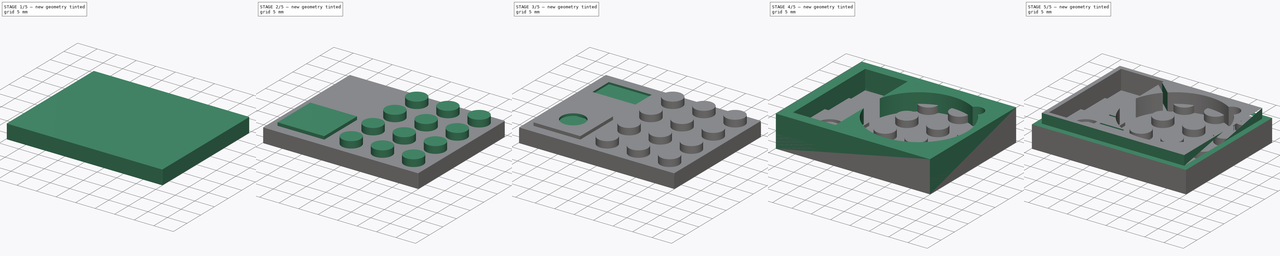
[diagram: build sequence overview — one tinted view per stage of 5, left to right]
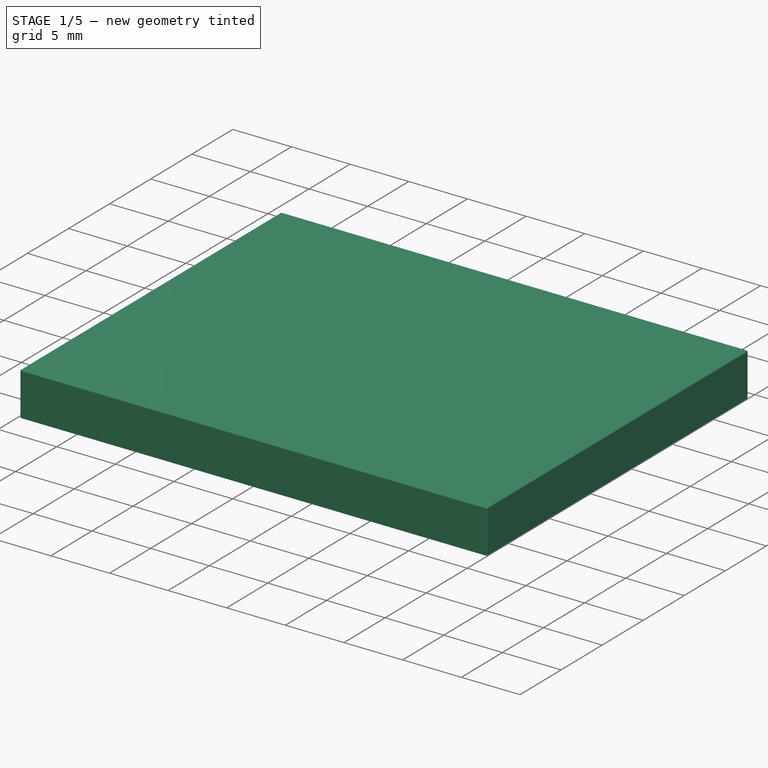
[diagram: stage 1 of 5 — iso view after this stage's code; geometry added in this stage tinted green]
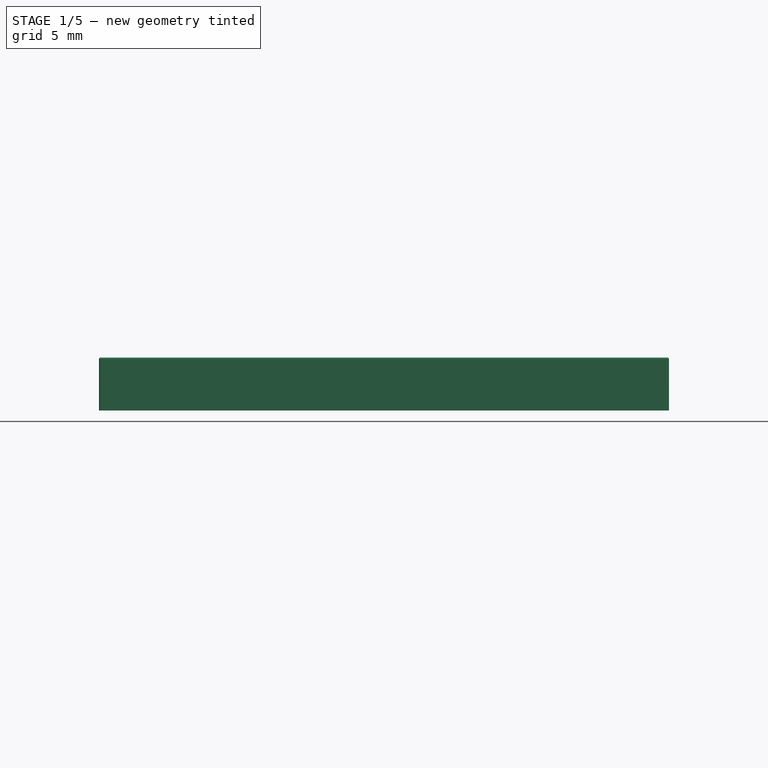
[diagram: stage 1 of 5 — front view after this stage's code; geometry added in this stage tinted green]
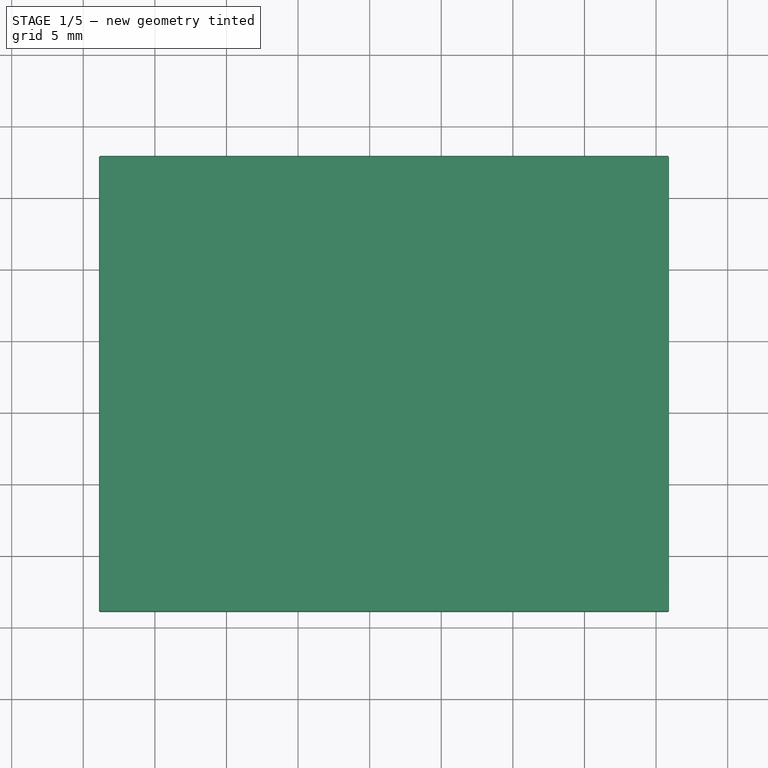
[diagram: stage 1 of 5 — top view after this stage's code; geometry added in this stage tinted green]
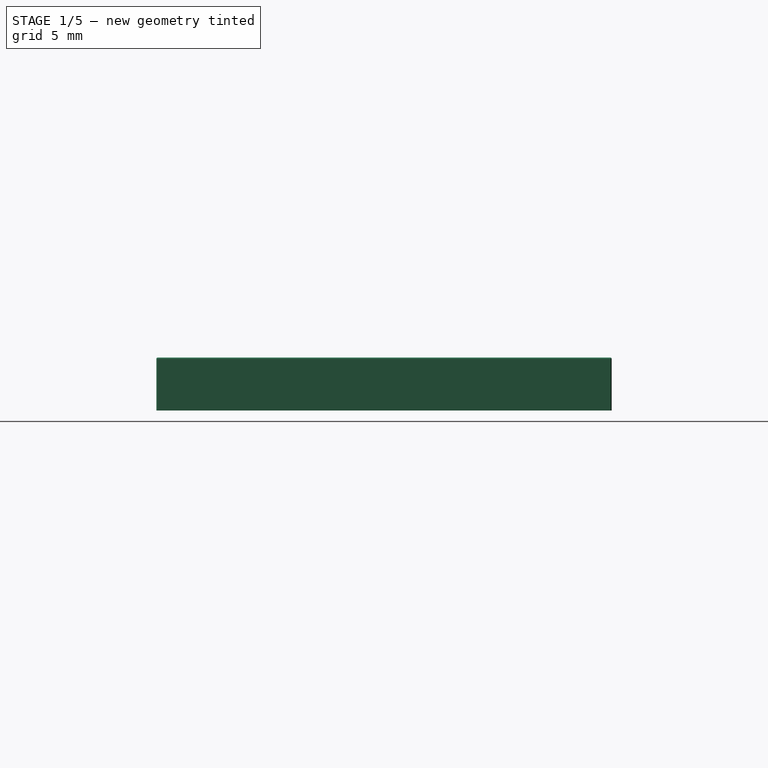
[diagram: stage 1 of 5 — right view after this stage's code; geometry added in this stage tinted green]
FCSTD DOCUMENT  (FreeCAD 1.0R39285 (Git))
Label: LegoBat_CR2450
License: Creative Commons Attribution-NonCommercial 4.0
LicenseURL: https://creativecommons.org/licenses/by-nc/4.0/
objects: PartDesign::Plane×23, Sketcher::SketchObject×14, PartDesign::Pocket×8, PartDesign::Pad×6, PartDesign::Body×2, PartDesign::Fillet×2
note: 101 computed .brp shape members not serialized (recipe doc carries the construction recipe); baked Part::Feature solids carry a one-line shape summary decoded from their .brp

FEATURE [PartDesign::Plane] top_datum_plane001
  AttachmentOffset = pos=(0,0,3.7) rot=(0,0,1;0rad)
  AttachmentSupport = -> [XY_Plane]
  Length = 72.2518
  MapMode = 5
  Placement = pos=(0,0,3.7) rot=(0,0,1;0rad)
  ResizeMode = 0
  Width = 64.2518
FEATURE [PartDesign::Plane] front_datum_plane001
  AttachmentOffset = pos=(0,0,3.9) rot=(0,0,1;0rad)
  AttachmentSupport = -> [XZ_Plane]
  Length = 71.9363
  MapMode = 5
  Placement = pos=(0,-3.9,9e-16) rot=(1,0,0;1.5708rad)
  ResizeMode = 0
  Width = 61.0363
FEATURE [PartDesign::Plane] back_datum_plane001
  AttachmentOffset = pos=(0,0,-27.9) rot=(0,0,1;0rad)
  AttachmentSupport = -> [XZ_Plane]
  Length = 71.9363
  MapMode = 5
  Placement = pos=(0,27.9,-6.2e-15) rot=(1,0,0;1.5708rad)
  ResizeMode = 0
  Width = 61.0363
FEATURE [PartDesign::Plane] left_datum_plane001
  AttachmentOffset = pos=(0,0,-3.9) rot=(0,0,1;0rad)
  AttachmentSupport = -> [YZ_Plane]
  Length = 63.1859
  MapMode = 5
  Placement = pos=(-3.9,0,0) rot=(0.57735,0.57735,0.57735;2.0944rad)
  ResizeMode = 0
  Width = 60.2859
FEATURE [PartDesign::Plane] right_datum_plane001
  AttachmentOffset = pos=(0,0,35.9) rot=(0,0,1;0rad)
  AttachmentSupport = -> [YZ_Plane]
  Length = 63.1859
  MapMode = 5
  Placement = pos=(35.9,0,0) rot=(0.57735,0.57735,0.57735;2.0944rad)
  ResizeMode = 0
  Width = 60.2859
FEATURE [PartDesign::Plane] top_inside_datum_plane001
  AttachmentOffset = pos=(0,0,2.6) rot=(0,0,1;0rad)
  AttachmentSupport = -> [XY_Plane]
  Length = 72.2518
  MapMode = 5
  Placement = pos=(0,0,2.6) rot=(0,0,1;0rad)
  ResizeMode = 0
  Width = 64.2518
FEATURE [PartDesign::Plane] front_inside_datum_plane001
  AttachmentOffset = pos=(0,0,2.7) rot=(0,0,1;0rad)
  AttachmentSupport = -> [XZ_Plane]
  Length = 71.9363
  MapMode = 5
  Placement = pos=(0,-2.7,6e-16) rot=(1,0,0;1.5708rad)
  ResizeMode = 0
  Width = 61.0363
FEATURE [PartDesign::Plane] back_inside_datum_plane001
  AttachmentOffset = pos=(0,0,-26.7) rot=(0,0,1;0rad)
  AttachmentSupport = -> [XZ_Plane]
  Length = 71.9363
  MapMode = 5
  Placement = pos=(0,26.7,-5.9e-15) rot=(1,0,0;1.5708rad)
  ResizeMode = 0
  Width = 61.0363
FEATURE [PartDesign::Plane] left_inside_datum_plane001
  AttachmentOffset = pos=(0,0,-2.7) rot=(0,0,1;0rad)
  AttachmentSupport = -> [YZ_Plane]
  Length = 63.1859
  MapMode = 5
  Placement = pos=(-2.7,0,0) rot=(0.57735,0.57735,0.57735;2.0944rad)
  ResizeMode = 0
  Width = 60.2859
FEATURE [PartDesign::Plane] right_inside_datum_plane001
  AttachmentOffset = pos=(0,0,34.7) rot=(0,0,1;0rad)
  AttachmentSupport = -> [YZ_Plane]
  Length = 63.1859
  MapMode = 5
  Placement = pos=(34.7,0,0) rot=(0.57735,0.57735,0.57735;2.0944rad)
  ResizeMode = 0
  Width = 60.2859
FEATURE [PartDesign::Plane] depth_mirror_datum_plane001
  AttachmentOffset = pos=(0,0,-12) rot=(0,0,1;0rad)
  AttachmentSupport = -> [XZ_Plane]
  Length = 71.9363
  MapMode = 5
  Placement = pos=(0,12,-2.7e-15) rot=(1,0,0;1.5708rad)
  ResizeMode = 0
  Width = 61.0363
FEATURE [Sketcher::SketchObject] body_pad_sketch001
  ArcFitTolerance = 1e-06
  AttachmentSupport = -> [XY_Plane]
  FullyConstrained = true
  MakeInternals = false
  MapMode = 2
  sketch-geometry (4):
    g0: LineSegment StartX=-3.9 StartY=-3.9 StartZ=0 EndX=35.9 EndY=-3.9 EndZ=0
    g1: LineSegment StartX=35.9 StartY=-3.9 StartZ=0 EndX=35.9 EndY=27.9 EndZ=0
    g2: LineSegment StartX=35.9 StartY=27.9 StartZ=0 EndX=-3.9 EndY=27.9 EndZ=0
    g3: LineSegment StartX=-3.9 StartY=27.9 StartZ=0 EndX=-3.9 EndY=-3.9 EndZ=0
  constraints (12):
    c: Coincident(g0,g1)
    c: Coincident(g1,g2)
    c: Coincident(g2,g3)
    c: Coincident(g3,g0)
    c: Horizontal(g0)
    c: Horizontal(g2)
    c: Vertical(g1)
    c: Vertical(g3)
    c: DistanceX(g0,g-1) = 3.9
    c: DistanceY(g0,g-1) = 3.9
    c: DistanceX(g0,g0) = 39.8
    c: DistanceY(g1,g1) = 31.8
FEATURE [PartDesign::Pad] body_pad001
  Direction = (0,0,1)
  Length = 10
  Length2 = 10
  Profile = -> body_pad_sketch001
  Refine = true
  Suppressed = false
  Type = 3
  UpToFace = -> top_datum_plane001
FEATURE [PartDesign::Body] brick  label="bottom"
  AllowCompound = false
  Group = -> [top_datum_plane,front_datum_plane,back_datum_plane,left_datum_plane,right_datum_plane,top_inside_datum_plane,front_inside_datum_plane,back_inside_datum_plane,left_inside_datum_plane,right_inside_datum_plane,depth_mirror_datum_plane,DatumPlane,body_pad_sketch,body_pad,body_pocket_sketch,body_pocket,tubes_pad_sketch,tubes_pad,tubes_pocket_sketch,tubes_pocket,Sketch,Pad,Sketch001,Pocket,Sketch003,+3 more]
  Origin = -> Origin001
  Tip = -> Pocket003
FEATURE [PartDesign::Fillet] body_edge_fillets
  Base = -> body_pad001 [Edge10,Edge11,Edge9,Edge3,Edge2,Edge4,Edge8,Edge12]
  BaseFeature = -> body_pad001
  Radius = 0.1
  Refine = true
  SupportTransform = false
  Suppressed = false
  UseAllEdges = false
FEATURE [PartDesign::Pocket] body_pocket001
  BaseFeature = -> body_edge_fillets
  Direction = (0,0,-1)
  Length = 5
  Length2 = 5
  Profile = -> body_pocket_sketch001
  Refine = true
  Reversed = true
  Suppressed = false
  Type = 3
  UpToFace = -> top_inside_datum_plane001
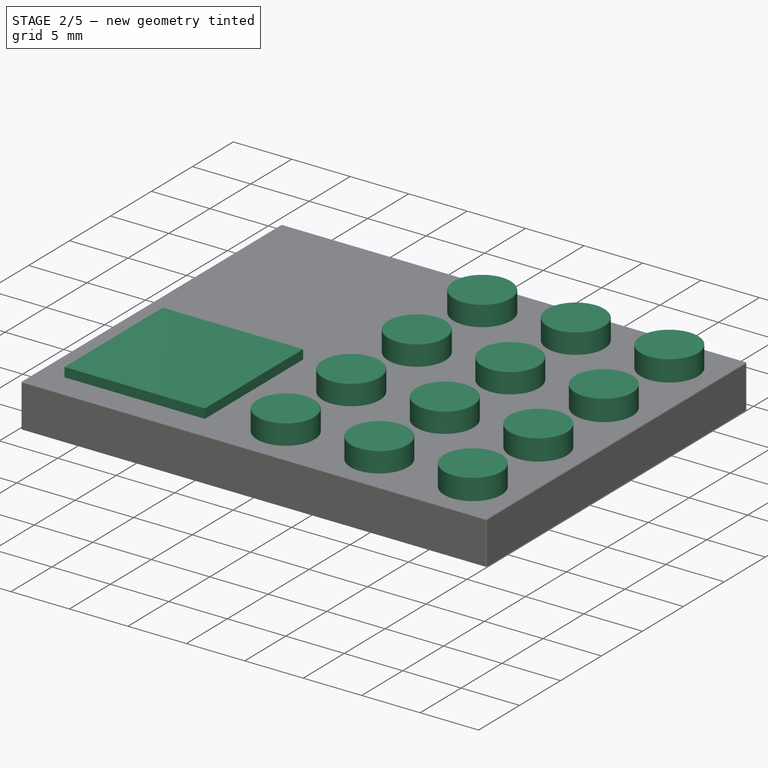
[diagram: stage 2 of 5 — iso view after this stage's code; geometry added in this stage tinted green]
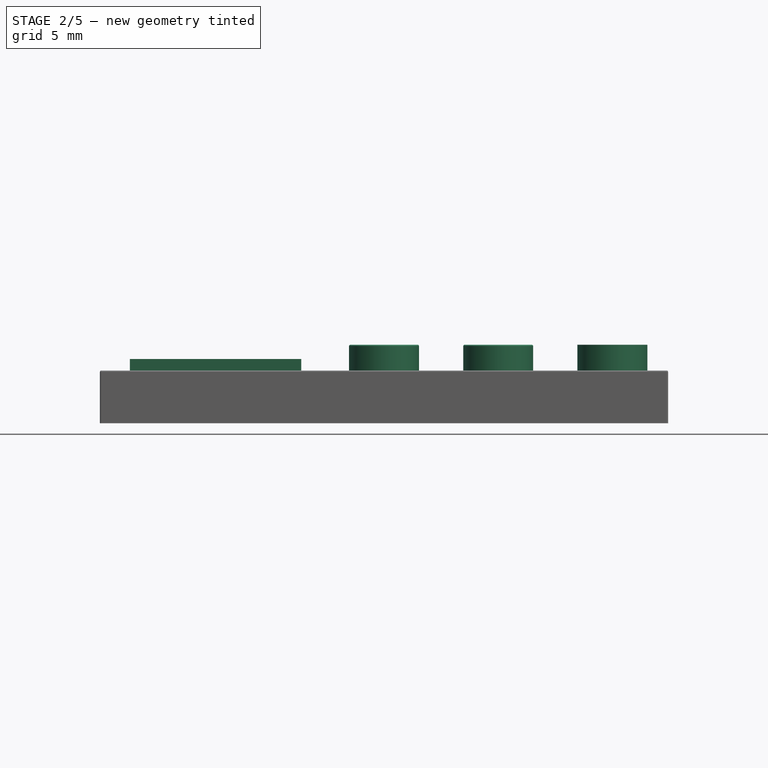
[diagram: stage 2 of 5 — front view after this stage's code; geometry added in this stage tinted green]
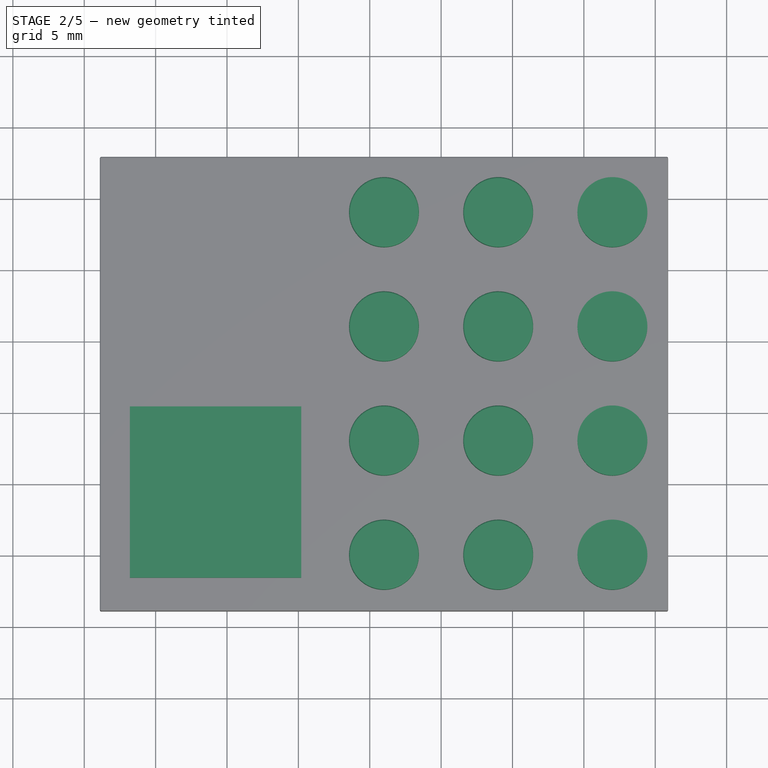
[diagram: stage 2 of 5 — top view after this stage's code; geometry added in this stage tinted green]
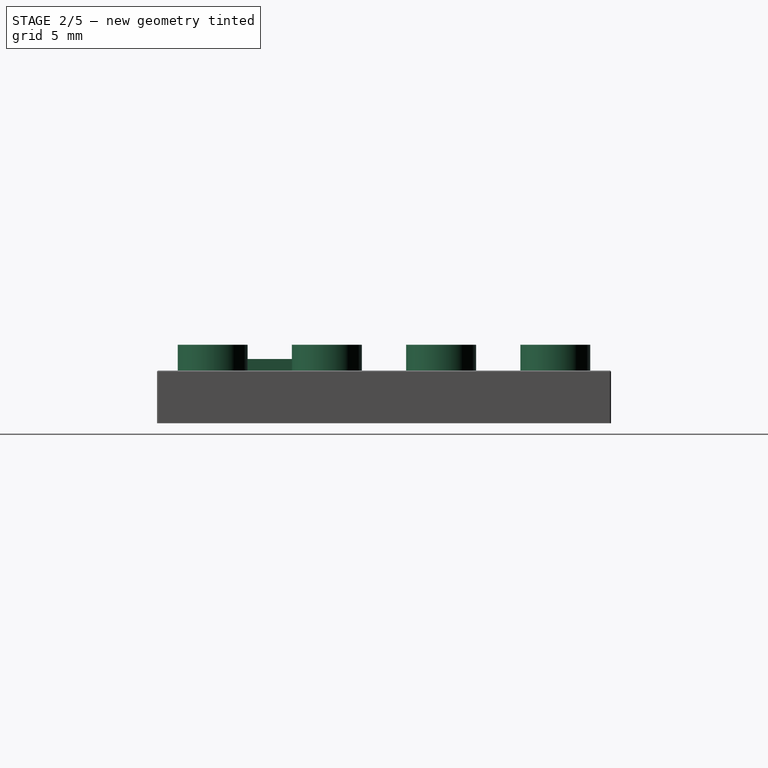
[diagram: stage 2 of 5 — right view after this stage's code; geometry added in this stage tinted green]
FEATURE [PartDesign::Pad] top_studs_outside_pad
  BaseFeature = -> body_pocket001
  Direction = (0,0,1)
  Length = 1.8
  Length2 = 10
  Profile = -> top_studs_outside_pad_sketch
  Refine = true
  Suppressed = false
  Type = 0
FEATURE [PartDesign::Fillet] Fillet
  Base = -> top_studs_outside_pad [Face50,Face51,Face46,Face44,Face45,Face47,Face53,Face52]
  BaseFeature = -> top_studs_outside_pad
  Radius = 0.1
  Refine = true
  SupportTransform = false
  Suppressed = false
  UseAllEdges = false
FEATURE [Sketcher::SketchObject] Sketch005  label="s_aufdopplung"
  ArcFitTolerance = 1e-06
  AttachmentSupport = -> [top_datum_plane001]
  FullyConstrained = true
  MakeInternals = false
  MapMode = 5
  Placement = pos=(0,0,3.7) rot=(0,0,1;0rad)
  sketch-geometry (6):
    g0: LineSegment StartX=-1.8 StartY=10.4 StartZ=0 EndX=-1.8 EndY=-1.6 EndZ=0
    g1: LineSegment StartX=-1.8 StartY=-1.6 StartZ=0 EndX=10.2 EndY=-1.6 EndZ=0
    g2: LineSegment StartX=10.2 StartY=-1.6 StartZ=0 EndX=10.2 EndY=10.4 EndZ=0
    g3: LineSegment StartX=10.2 StartY=10.4 StartZ=0 EndX=-1.8 EndY=10.4 EndZ=0
    g4: LineSegment [constr] StartX=4.2 StartY=10.4 StartZ=0 EndX=4.2 EndY=-1.6 EndZ=0
    g5: LineSegment [constr] StartX=10.2 StartY=4.4 StartZ=0 EndX=-1.8 EndY=4.4 EndZ=0
  constraints (16):
    c: Coincident(g0,g1)
    c: Coincident(g1,g2)
    c: Coincident(g2,g3)
    c: Coincident(g3,g0)
    c: Vertical(g0)
    c: Vertical(g2)
    c: Horizontal(g1)
    c: Horizontal(g3)
    c: DistanceX(g3,g3) = 12
    c: Equal(g3,g0)
    c: Symmetric(g3,g3,g4)
    c: Symmetric(g1,g1,g4)
    c: Symmetric(g2,g2,g5)
    c: Symmetric(g0,g0,g5)
    c: DistanceX(g-1,g4) = 4.2
    c: DistanceY(g-1,g5) = 4.4
FEATURE [PartDesign::Pad] Pad001  label="p_aufdopplung"
  BaseFeature = -> Fillet
  Direction = (0,0,1)
  Length = 0.8
  Length2 = 10
  Profile = -> Sketch005
  ReferenceAxis = -> Sketch005 [N_Axis]
  Refine = true
  Suppressed = false
  Type = 0
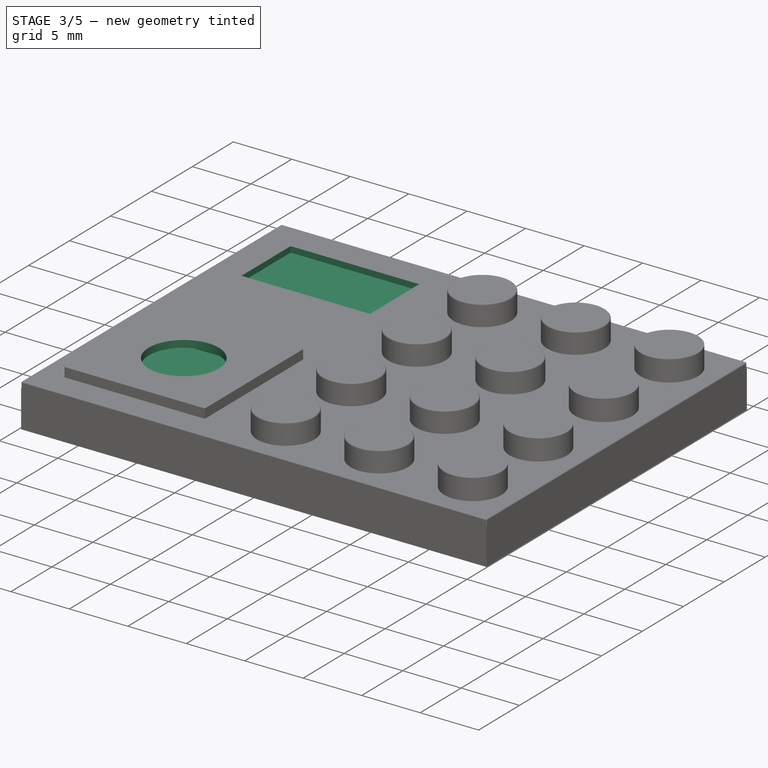
[diagram: stage 3 of 5 — iso view after this stage's code; geometry added in this stage tinted green]
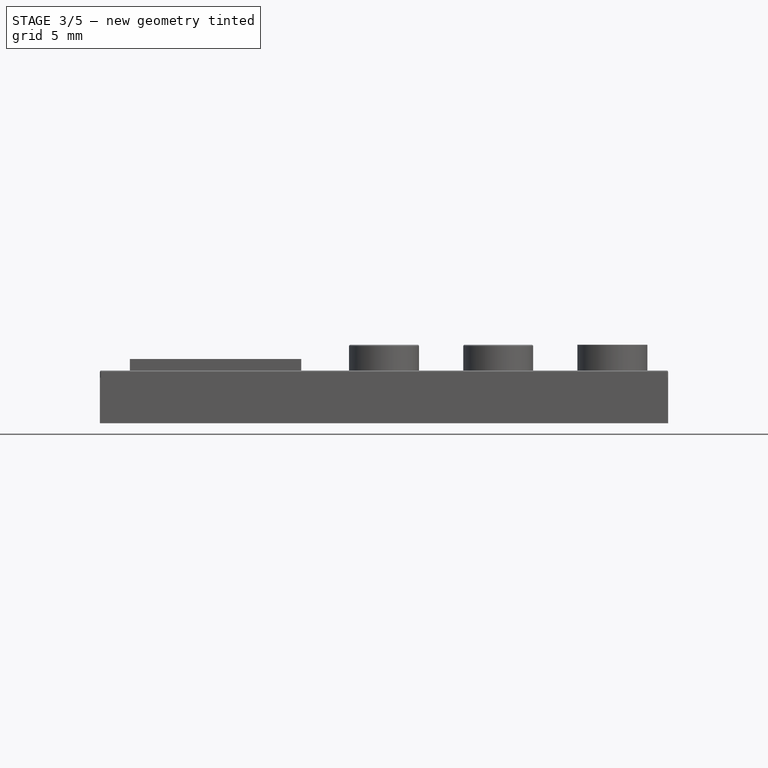
[diagram: stage 3 of 5 — front view after this stage's code; geometry added in this stage tinted green]
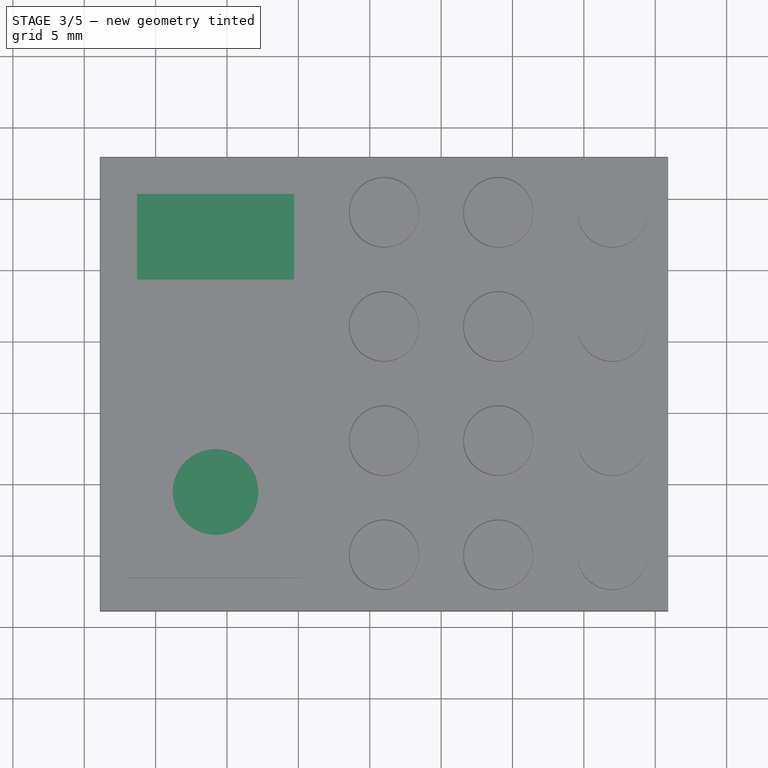
[diagram: stage 3 of 5 — top view after this stage's code; geometry added in this stage tinted green]
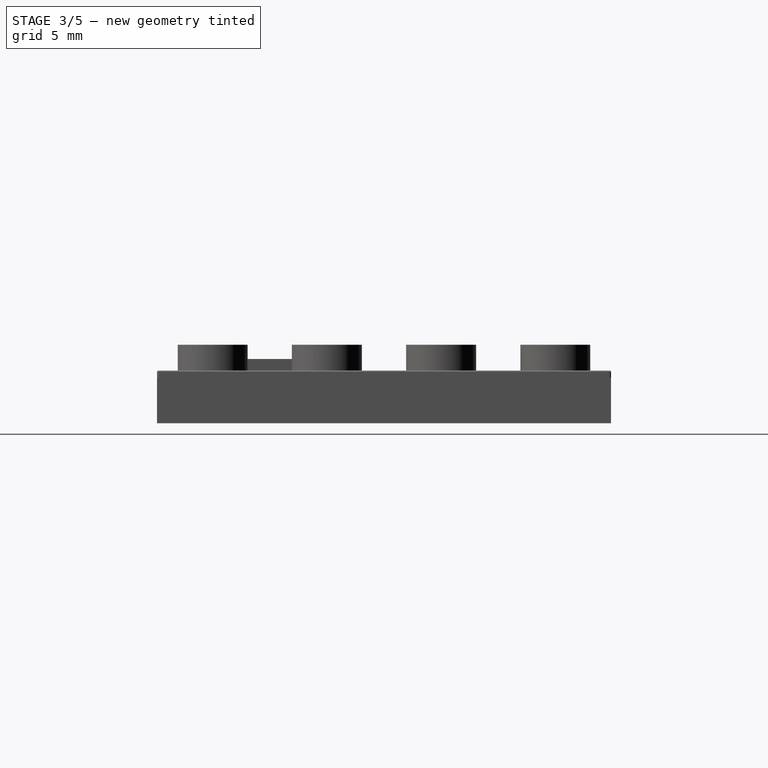
[diagram: stage 3 of 5 — right view after this stage's code; geometry added in this stage tinted green]
FEATURE [PartDesign::Plane] top_datum_plane
  AttachmentOffset = pos=(0,0,3.2) rot=(0,0,1;0rad)
  AttachmentSupport = -> [XY_Plane001]
  Length = 72.2518
  MapMode = 5
  Placement = pos=(0,0,3.2) rot=(0,0,1;0rad)
  ResizeMode = 0
  Width = 64.2518
FEATURE [PartDesign::Plane] front_datum_plane
  AttachmentOffset = pos=(0,0,3.9) rot=(0,0,1;0rad)
  AttachmentSupport = -> [XZ_Plane001]
  Length = 71.9363
  MapMode = 5
  Placement = pos=(0,-3.9,9e-16) rot=(1,0,0;1.5708rad)
  ResizeMode = 0
  Width = 61.0363
FEATURE [PartDesign::Plane] back_datum_plane
  AttachmentOffset = pos=(0,0,-27.9) rot=(0,0,1;0rad)
  AttachmentSupport = -> [XZ_Plane001]
  Length = 71.9363
  MapMode = 5
  Placement = pos=(0,27.9,-6.2e-15) rot=(1,0,0;1.5708rad)
  ResizeMode = 0
  Width = 61.0363
FEATURE [PartDesign::Plane] left_datum_plane
  AttachmentOffset = pos=(0,0,-3.9) rot=(0,0,1;0rad)
  AttachmentSupport = -> [YZ_Plane001]
  Length = 63.1859
  MapMode = 5
  Placement = pos=(-3.9,0,0) rot=(0.57735,0.57735,0.57735;2.0944rad)
  ResizeMode = 0
  Width = 60.2859
FEATURE [PartDesign::Plane] right_datum_plane
  AttachmentOffset = pos=(0,0,35.9) rot=(0,0,1;0rad)
  AttachmentSupport = -> [YZ_Plane001]
  Length = 63.1859
  MapMode = 5
  Placement = pos=(35.9,0,0) rot=(0.57735,0.57735,0.57735;2.0944rad)
  ResizeMode = 0
  Width = 60.2859
FEATURE [PartDesign::Plane] top_inside_datum_plane
  AttachmentOffset = pos=(0,0,2.1) rot=(0,0,1;0rad)
  AttachmentSupport = -> [XY_Plane001]
  Length = 72.2518
  MapMode = 5
  Placement = pos=(0,0,2.1) rot=(0,0,1;0rad)
  ResizeMode = 0
  Width = 64.2518
FEATURE [PartDesign::Plane] front_inside_datum_plane
  AttachmentOffset = pos=(0,0,2.7) rot=(0,0,1;0rad)
  AttachmentSupport = -> [XZ_Plane001]
  Length = 71.9363
  MapMode = 5
  Placement = pos=(0,-2.7,6e-16) rot=(1,0,0;1.5708rad)
  ResizeMode = 0
  Width = 61.0363
FEATURE [PartDesign::Plane] back_inside_datum_plane
  AttachmentOffset = pos=(0,0,-26.7) rot=(0,0,1;0rad)
  AttachmentSupport = -> [XZ_Plane001]
  Length = 71.9363
  MapMode = 5
  Placement = pos=(0,26.7,-5.9e-15) rot=(1,0,0;1.5708rad)
  ResizeMode = 0
  Width = 61.0363
FEATURE [PartDesign::Plane] left_inside_datum_plane
  AttachmentOffset = pos=(0,0,-2.7) rot=(0,0,1;0rad)
  AttachmentSupport = -> [YZ_Plane001]
  Length = 63.1859
  MapMode = 5
  Placement = pos=(-2.7,0,0) rot=(0.57735,0.57735,0.57735;2.0944rad)
  ResizeMode = 0
  Width = 60.2859
FEATURE [PartDesign::Plane] right_inside_datum_plane
  AttachmentOffset = pos=(0,0,34.7) rot=(0,0,1;0rad)
  AttachmentSupport = -> [YZ_Plane001]
  Length = 63.1859
  MapMode = 5
  Placement = pos=(34.7,0,0) rot=(0.57735,0.57735,0.57735;2.0944rad)
  ResizeMode = 0
  Width = 60.2859
FEATURE [PartDesign::Plane] depth_mirror_datum_plane
  AttachmentOffset = pos=(0,0,-12) rot=(0,0,1;0rad)
  AttachmentSupport = -> [XZ_Plane001]
  Length = 71.9363
  MapMode = 5
  Placement = pos=(0,12,-2.7e-15) rot=(1,0,0;1.5708rad)
  ResizeMode = 0
  Width = 61.0363
FEATURE [Sketcher::SketchObject] body_pad_sketch
  ArcFitTolerance = 1e-06
  FullyConstrained = true
  MakeInternals = false
  MapMode = 2
  sketch-geometry (4):
    g0: LineSegment StartX=-3.9 StartY=-3.9 StartZ=0 EndX=35.9 EndY=-3.9 EndZ=0
    g1: LineSegment StartX=35.9 StartY=-3.9 StartZ=0 EndX=35.9 EndY=27.9 EndZ=0
    g2: LineSegment StartX=35.9 StartY=27.9 StartZ=0 EndX=-3.9 EndY=27.9 EndZ=0
    g3: LineSegment StartX=-3.9 StartY=27.9 StartZ=0 EndX=-3.9 EndY=-3.9 EndZ=0
  constraints (12):
    c: Coincident(g0,g1)
    c: Coincident(g1,g2)
    c: Coincident(g2,g3)
    c: Coincident(g3,g0)
    c: Horizontal(g0)
    c: Horizontal(g2)
    c: Vertical(g1)
    c: Vertical(g3)
    c: DistanceX(g0,g-1) = 3.9
    c: DistanceY(g0,g-1) = 3.9
    c: DistanceX(g0,g0) = 39.8
    c: DistanceY(g1,g1) = 31.8
FEATURE [PartDesign::Pad] body_pad
  Direction = (0,0,1)
  Length = 10
  Length2 = 10
  Profile = -> body_pad_sketch
  Refine = true
  Suppressed = false
  Type = 3
  UpToFace = -> top_datum_plane
FEATURE [Sketcher::SketchObject] body_pocket_sketch
  ArcFitTolerance = 1e-06
  AttachmentSupport = -> [body_pad_sketch]
  FullyConstrained = true
  MakeInternals = false
  MapMode = 2
  sketch-geometry (4):
    g0: LineSegment StartX=-2.4 StartY=-2.4 StartZ=0 EndX=34.4 EndY=-2.4 EndZ=0
    g1: LineSegment StartX=34.4 StartY=-2.4 StartZ=0 EndX=34.4 EndY=26.4 EndZ=0
    g2: LineSegment StartX=34.4 StartY=26.4 StartZ=0 EndX=-2.4 EndY=26.4 EndZ=0
    g3: LineSegment StartX=-2.4 StartY=26.4 StartZ=0 EndX=-2.4 EndY=-2.4 EndZ=0
  constraints (12):
    c: Horizontal(g0)
    c: Vertical(g1)
    c: Coincident(g0,g1)
    c: Horizontal(g2)
    c: Coincident(g1,g2)
    c: Vertical(g3)
    c: Coincident(g2,g3)
    c: Coincident(g3,g0)
    c: DistanceX(g0,g0) = 36.8
    c: DistanceY(g1,g1) = 28.8
    c: DistanceX(g0,g-1) = 2.4
    c: DistanceY(g0,g-1) = 2.4
FEATURE [PartDesign::Pocket] body_pocket
  BaseFeature = -> body_pad
  Direction = (0,0,-1)
  Length = 5
  Length2 = 5
  Profile = -> body_pocket_sketch
  Refine = true
  Reversed = true
  Suppressed = false
  Type = 3
  UpToFace = -> top_inside_datum_plane
FEATURE [PartDesign::Pocket] Pocket001  label="c_oeffnung"
  BaseFeature = -> Pad001
  Direction = (0,0,-1)
  Length = 6
  Length2 = 5
  Profile = -> Sketch002
  ReferenceAxis = -> Sketch002 [N_Axis]
  Refine = true
  Reversed = true
  Suppressed = false
  Type = 0
FEATURE [Sketcher::SketchObject] Sketch006  label="s_aufdop_innen"
  ArcFitTolerance = 1e-06
  AttachmentSupport = -> [top_datum_plane001]
  ExternalGeometry = -> [Sketch005]
  FullyConstrained = true
  MakeInternals = false
  MapMode = 5
  Placement = pos=(0,0,3.7) rot=(0,0,1;0rad)
  sketch-geometry (7):
    g0: LineSegment [constr] StartX=4.2 StartY=10.4 StartZ=0 EndX=4.2 EndY=-1.6 EndZ=0
    g1: LineSegment [constr] StartX=10.2 StartY=4.4 StartZ=0 EndX=-1.8 EndY=4.4 EndZ=0
    g2: LineSegment StartX=8.2 StartY=0.4 StartZ=0 EndX=8.2 EndY=8.4 EndZ=0
    g3: LineSegment StartX=8.2 StartY=8.4 StartZ=0 EndX=0.2 EndY=8.4 EndZ=0
    g4: LineSegment StartX=0.2 StartY=8.4 StartZ=0 EndX=0.2 EndY=0.4 EndZ=0
    g5: LineSegment StartX=0.2 StartY=0.4 StartZ=0 EndX=8.2 EndY=0.4 EndZ=0
    g6: GeomPoint X=4.2 Y=4.4 Z=0
  constraints (16):
    c: Symmetric(g-4,g-4,g0)
    c: Symmetric(g-6,g-6,g0)
    c: Symmetric(g-5,g-5,g1)
    c: Symmetric(g-3,g-3,g1)
    c: Coincident(g2,g3)
    c: Coincident(g3,g4)
    c: Coincident(g4,g5)
    c: Coincident(g5,g2)
    c: Vertical(g2)
    c: Vertical(g4)
    c: Horizontal(g3)
    c: Horizontal(g5)
    c: Symmetric(g0,g0,g6)
    c: Symmetric(g3,g2,g6)
    c: Equal(g3,g2)
    c: DistanceX(g5,g5) = 8
FEATURE [PartDesign::Pocket] Pocket004  label="p_aufdop_innen"
  BaseFeature = -> Pocket001
  Direction = (0,0,-1)
  Length = 5
  Length2 = 0.2
  Profile = -> Sketch006
  ReferenceAxis = -> Sketch006 [N_Axis]
  Refine = true
  Suppressed = false
  Type = 4
FEATURE [PartDesign::Body] brick001  label="top"
  AllowCompound = false
  Group = -> [top_datum_plane001,front_datum_plane001,back_datum_plane001,left_datum_plane001,right_datum_plane001,top_inside_datum_plane001,front_inside_datum_plane001,back_inside_datum_plane001,left_inside_datum_plane001,right_inside_datum_plane001,depth_mirror_datum_plane001,body_pad_sketch001,body_pad001,body_edge_fillets,body_pocket_sketch001,body_pocket001,top_studs_outside_pad_sketch,+8 more]
  Origin = -> Origin
  Tip = -> Pocket004
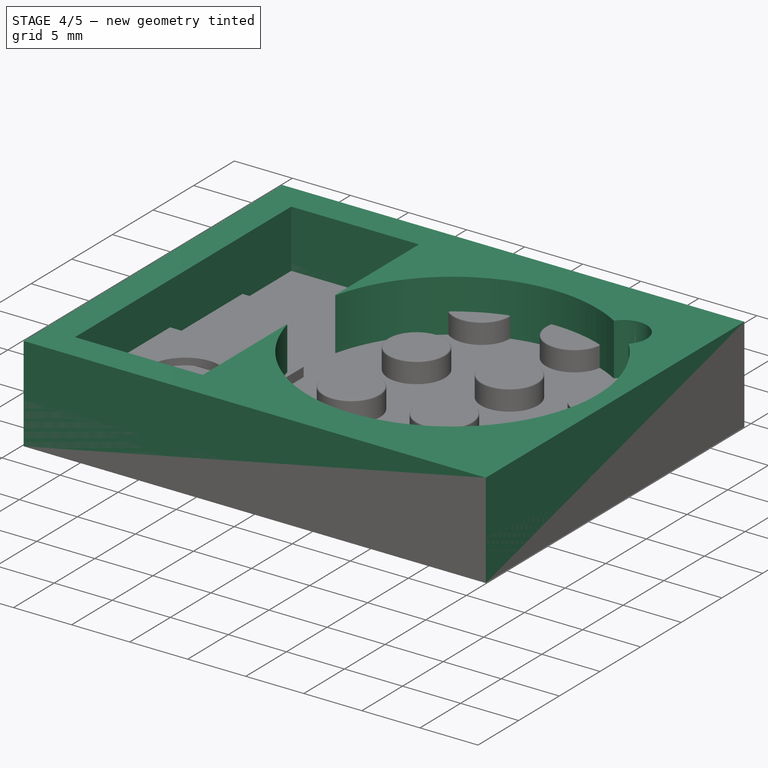
[diagram: stage 4 of 5 — iso view after this stage's code; geometry added in this stage tinted green]
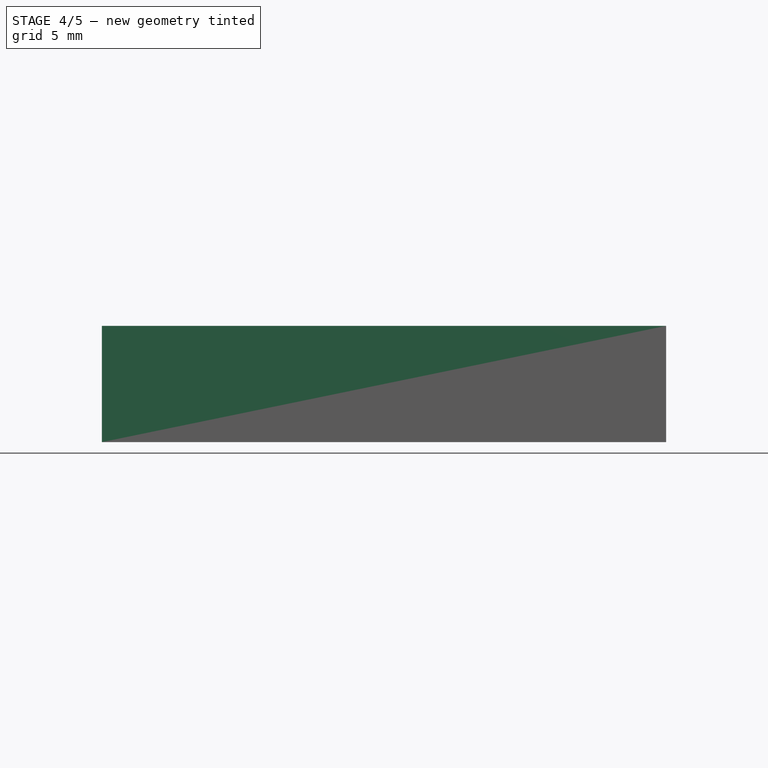
[diagram: stage 4 of 5 — front view after this stage's code; geometry added in this stage tinted green]
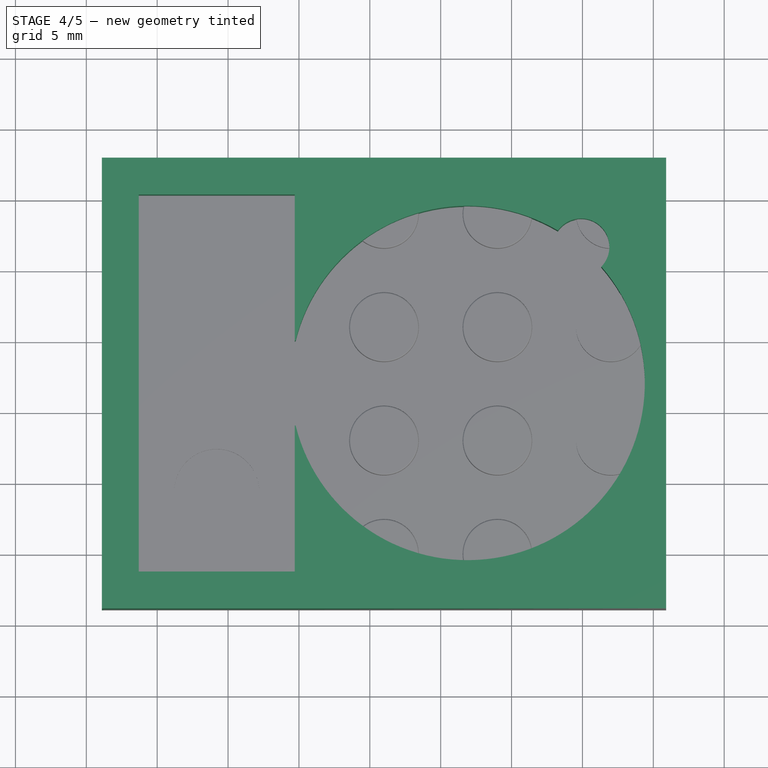
[diagram: stage 4 of 5 — top view after this stage's code; geometry added in this stage tinted green]
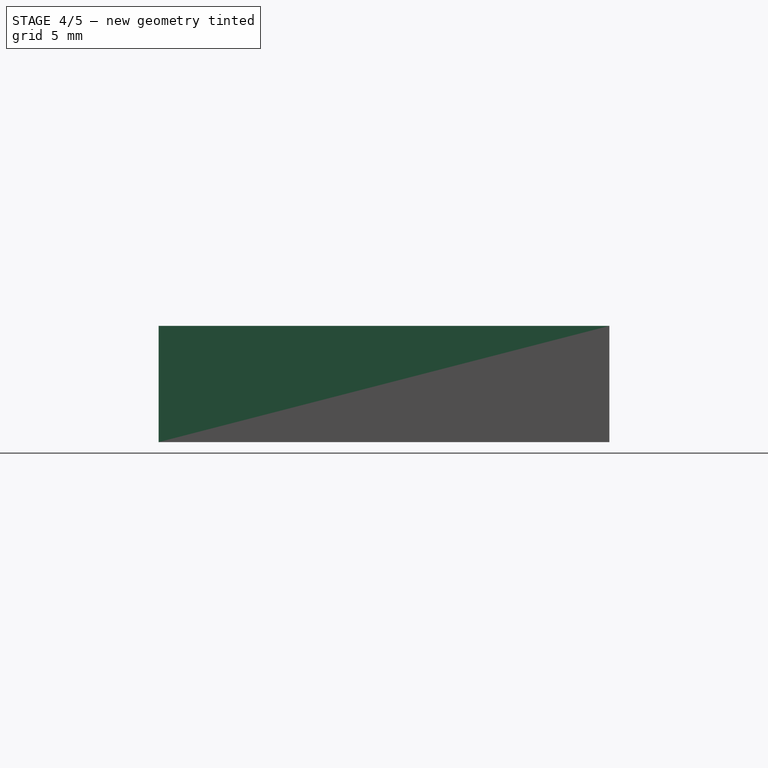
[diagram: stage 4 of 5 — right view after this stage's code; geometry added in this stage tinted green]
FEATURE [Sketcher::SketchObject] tubes_pad_sketch
  ArcFitTolerance = 1e-06
  AttachmentSupport = -> [body_pad_sketch]
  FullyConstrained = true
  MakeInternals = false
  MapMode = 2
  sketch-geometry (47):
    g0: LineSegment [constr] StartX=1.7019 StartY=1.7019 StartZ=0 EndX=6.2981 EndY=6.2981 EndZ=0
    g1: ArcOfCircle CenterX=4 CenterY=4 CenterZ=0 NormalX=0 NormalY=0 NormalZ=1 AngleXU=0 Radius=3.25 StartAngle=3.92699 EndAngle=7.06858
    g2: ArcOfCircle CenterX=4 CenterY=4 CenterZ=0 NormalX=0 NormalY=0 NormalZ=1 AngleXU=0 Radius=3.25 StartAngle=0.785398 EndAngle=3.92699
    g3: LineSegment [constr] StartX=1.7019 StartY=9.7019 StartZ=0 EndX=6.2981 EndY=14.2981 EndZ=0
    g4: ArcOfCircle CenterX=4 CenterY=12 CenterZ=0 NormalX=0 NormalY=0 NormalZ=1 AngleXU=0 Radius=3.25 StartAngle=3.92699 EndAngle=7.06858
    g5: ArcOfCircle CenterX=4 CenterY=12 CenterZ=0 NormalX=0 NormalY=0 NormalZ=1 AngleXU=0 Radius=3.25 StartAngle=0.785398 EndAngle=3.92699
    g6: LineSegment [constr] StartX=1.7019 StartY=1.7019 StartZ=0 EndX=1.7019 EndY=9.7019 EndZ=0
    g7: LineSegment [constr] StartX=1.7019 StartY=17.7019 StartZ=0 EndX=6.2981 EndY=22.2981 EndZ=0
    g8: ArcOfCircle CenterX=4 CenterY=20 CenterZ=0 NormalX=0 NormalY=0 NormalZ=1 AngleXU=0 Radius=3.25 StartAngle=3.92699 EndAngle=7.06858
    g9: ArcOfCircle CenterX=4 CenterY=20 CenterZ=0 NormalX=0 NormalY=0 NormalZ=1 AngleXU=0 Radius=3.25 StartAngle=0.785398 EndAngle=3.92699
    g10: LineSegment [constr] StartX=1.7019 StartY=9.7019 StartZ=0 EndX=1.7019 EndY=17.7019 EndZ=0
    g11: LineSegment [constr] StartX=9.7019 StartY=1.7019 StartZ=0 EndX=14.2981 EndY=6.2981 EndZ=0
    g12: ArcOfCircle CenterX=12 CenterY=4 CenterZ=0 NormalX=0 NormalY=0 NormalZ=1 AngleXU=0 Radius=3.25 StartAngle=3.92699 EndAngle=7.06858
    g13: ArcOfCircle CenterX=12 CenterY=4 CenterZ=0 NormalX=0 NormalY=0 NormalZ=1 AngleXU=0 Radius=3.25 StartAngle=0.785398 EndAngle=3.92699
    g14: LineSegment [constr] StartX=1.7019 StartY=1.7019 StartZ=0 EndX=9.7019 EndY=1.7019 EndZ=0
    g15: LineSegment [constr] StartX=9.7019 StartY=9.7019 StartZ=0 EndX=14.2981 EndY=14.2981 EndZ=0
    g16: ArcOfCircle CenterX=12 CenterY=12 CenterZ=0 NormalX=0 NormalY=0 NormalZ=1 AngleXU=0 Radius=3.25 StartAngle=3.92699 EndAngle=7.06858
    g17: ArcOfCircle CenterX=12 CenterY=12 CenterZ=0 NormalX=0 NormalY=0 NormalZ=1 AngleXU=0 Radius=3.25 StartAngle=0.785398 EndAngle=3.92699
    g18: LineSegment [constr] StartX=9.7019 StartY=1.7019 StartZ=0 EndX=9.7019 EndY=9.7019 EndZ=0
    g19: LineSegment [constr] StartX=9.7019 StartY=17.7019 StartZ=0 EndX=14.2981 EndY=22.2981 EndZ=0
    g20: ArcOfCircle CenterX=12 CenterY=20 CenterZ=0 NormalX=0 NormalY=0 NormalZ=1 AngleXU=0 Radius=3.25 StartAngle=3.92699 EndAngle=7.06858
    g21: ArcOfCircle CenterX=12 CenterY=20 CenterZ=0 NormalX=0 NormalY=0 NormalZ=1 AngleXU=0 Radius=3.25 StartAngle=0.785398 EndAngle=3.92699
    g22: LineSegment [constr] StartX=9.7019 StartY=9.7019 StartZ=0 EndX=9.7019 EndY=17.7019 EndZ=0
    g23: LineSegment [constr] StartX=17.7019 StartY=1.7019 StartZ=0 EndX=22.2981 EndY=6.2981 EndZ=0
    g24: ArcOfCircle CenterX=20 CenterY=4 CenterZ=0 NormalX=0 NormalY=0 NormalZ=1 AngleXU=0 Radius=3.25 StartAngle=3.92699 EndAngle=7.06858
    g25: ArcOfCircle CenterX=20 CenterY=4 CenterZ=0 NormalX=0 NormalY=0 NormalZ=1 AngleXU=0 Radius=3.25 StartAngle=0.785398 EndAngle=3.92699
    g26: LineSegment [constr] StartX=9.7019 StartY=1.7019 StartZ=0 EndX=17.7019 EndY=1.7019 EndZ=0
    g27: LineSegment [constr] StartX=17.7019 StartY=9.7019 StartZ=0 EndX=22.2981 EndY=14.2981 EndZ=0
    g28: ArcOfCircle CenterX=20 CenterY=12 CenterZ=0 NormalX=0 NormalY=0 NormalZ=1 AngleXU=0 Radius=3.25 StartAngle=3.92699 EndAngle=7.06858
    g29: ArcOfCircle CenterX=20 CenterY=12 CenterZ=0 NormalX=0 NormalY=0 NormalZ=1 AngleXU=0 Radius=3.25 StartAngle=0.785398 EndAngle=3.92699
    g30: LineSegment [constr] StartX=17.7019 StartY=1.7019 StartZ=0 EndX=17.7019 EndY=9.7019 EndZ=0
    g31: LineSegment [constr] StartX=17.7019 StartY=17.7019 StartZ=0 EndX=22.2981 EndY=22.2981 EndZ=0
    g32: ArcOfCircle CenterX=20 CenterY=20 CenterZ=0 NormalX=0 NormalY=0 NormalZ=1 AngleXU=0 Radius=3.25 StartAngle=3.92699 EndAngle=7.06858
    g33: ArcOfCircle CenterX=20 CenterY=20 CenterZ=0 NormalX=0 NormalY=0 NormalZ=1 AngleXU=0 Radius=3.25 StartAngle=0.785398 EndAngle=3.92699
    g34: LineSegment [constr] StartX=17.7019 StartY=9.7019 StartZ=0 EndX=17.7019 EndY=17.7019 EndZ=0
    g35: LineSegment [constr] StartX=25.7019 StartY=1.7019 StartZ=0 EndX=30.2981 EndY=6.2981 EndZ=0
    g36: ArcOfCircle CenterX=28 CenterY=4 CenterZ=0 NormalX=0 NormalY=0 NormalZ=1 AngleXU=0 Radius=3.25 StartAngle=3.92699 EndAngle=7.06858
    g37: ArcOfCircle CenterX=28 CenterY=4 CenterZ=0 NormalX=0 NormalY=0 NormalZ=1 AngleXU=0 Radius=3.25 StartAngle=0.785398 EndAngle=3.92699
    g38: LineSegment [constr] StartX=17.7019 StartY=1.7019 StartZ=0 EndX=25.7019 EndY=1.7019 EndZ=0
    g39: LineSegment [constr] StartX=25.7019 StartY=9.7019 StartZ=0 EndX=30.2981 EndY=14.2981 EndZ=0
    g40: ArcOfCircle CenterX=28 CenterY=12 CenterZ=0 NormalX=0 NormalY=0 NormalZ=1 AngleXU=0 Radius=3.25 StartAngle=3.92699 EndAngle=7.06858
    g41: ArcOfCircle CenterX=28 CenterY=12 CenterZ=0 NormalX=0 NormalY=0 NormalZ=1 AngleXU=0 Radius=3.25 StartAngle=0.785398 EndAngle=3.92699
    g42: LineSegment [constr] StartX=25.7019 StartY=1.7019 StartZ=0 EndX=25.7019 EndY=9.7019 EndZ=0
    g43: LineSegment [constr] StartX=25.7019 StartY=17.7019 StartZ=0 EndX=30.2981 EndY=22.2981 EndZ=0
    g44: ArcOfCircle CenterX=28 CenterY=20 CenterZ=0 NormalX=0 NormalY=0 NormalZ=1 AngleXU=0 Radius=3.25 StartAngle=3.92699 EndAngle=7.06858
    g45: ArcOfCircle CenterX=28 CenterY=20 CenterZ=0 NormalX=0 NormalY=0 NormalZ=1 AngleXU=0 Radius=3.25 StartAngle=0.785398 EndAngle=3.92699
    g46: LineSegment [constr] StartX=25.7019 StartY=9.7019 StartZ=0 EndX=25.7019 EndY=17.7019 EndZ=0
  constraints (142):
    c: Angle(g0) = 0.785398
    c: Distance(g0,g0) = 6.5
    c: DistanceX(g-1,g1) = 4
    c: DistanceY(g-1,g1) = 4
    c: PointOnObject(g1,g0)
    c: PointOnObject(g2,g0)
    c: Coincident(g0,g1)
    c: Coincident(g0,g2)
    c: Coincident(g0,g1)
    c: Coincident(g0,g2)
    c: Angle(g3) = 0.785398
    c: Distance(g3,g3) = 6.5
    c: PointOnObject(g4,g3)
    c: PointOnObject(g5,g3)
    c: Coincident(g3,g4)
    c: Coincident(g3,g5)
    c: Coincident(g3,g4)
    c: Coincident(g3,g5)
    c: Coincident(g0,g6)
    c: Coincident(g3,g6)
    c: Distance(g6) = 8
    c: Angle(g6) = 1.5708
    c: Angle(g7) = 0.785398
    c: Distance(g7,g7) = 6.5
    c: PointOnObject(g8,g7)
    c: PointOnObject(g9,g7)
    c: Coincident(g7,g8)
    c: Coincident(g7,g9)
    c: Coincident(g7,g8)
    c: Coincident(g7,g9)
    c: Coincident(g3,g10)
    c: Coincident(g7,g10)
    c: Equal(g6,g10)
    c: Parallel(g10,g6)
    c: Angle(g11) = 0.785398
    c: Distance(g11,g11) = 6.5
    c: PointOnObject(g12,g11)
    c: PointOnObject(g13,g11)
    c: Coincident(g11,g12)
    c: Coincident(g11,g13)
    c: Coincident(g11,g12)
    c: Coincident(g11,g13)
    c: Coincident(g0,g14)
    c: Coincident(g11,g14)
    c: Equal(g14,g6)
    c: Perpendicular(g14,g6)
    c: Angle(g15) = 0.785398
    c: Distance(g15,g15) = 6.5
    c: PointOnObject(g16,g15)
    c: PointOnObject(g17,g15)
    c: Coincident(g15,g16)
    c: Coincident(g15,g17)
    c: Coincident(g15,g16)
    c: Coincident(g15,g17)
    c: Coincident(g11,g18)
    c: Coincident(g15,g18)
    c: Equal(g6,g18)
    c: Parallel(g18,g6)
    c: Angle(g19) = 0.785398
    c: Distance(g19,g19) = 6.5
    c: PointOnObject(g20,g19)
    c: PointOnObject(g21,g19)
    c: Coincident(g19,g20)
    c: Coincident(g19,g21)
    c: Coincident(g19,g20)
    c: Coincident(g19,g21)
    c: Coincident(g15,g22)
    c: Coincident(g19,g22)
    c: Equal(g6,g22)
    c: Parallel(g22,g6)
    c: Angle(g23) = 0.785398
    c: Distance(g23,g23) = 6.5
    c: PointOnObject(g24,g23)
    c: PointOnObject(g25,g23)
    c: Coincident(g23,g24)
    c: Coincident(g23,g25)
    c: Coincident(g23,g24)
    c: Coincident(g23,g25)
    c: Coincident(g11,g26)
    c: Coincident(g23,g26)
    c: Equal(g14,g26)
    c: Perpendicular(g26,g6)
    c: Angle(g27) = 0.785398
    c: Distance(g27,g27) = 6.5
    c: PointOnObject(g28,g27)
    c: PointOnObject(g29,g27)
    c: Coincident(g27,g28)
    c: Coincident(g27,g29)
    c: Coincident(g27,g28)
    c: Coincident(g27,g29)
    c: Coincident(g23,g30)
    c: Coincident(g27,g30)
    c: Equal(g6,g30)
    c: Parallel(g30,g6)
    c: Angle(g31) = 0.785398
    c: Distance(g31,g31) = 6.5
    c: PointOnObject(g32,g31)
    c: PointOnObject(g33,g31)
    c: Coincident(g31,g32)
    c: Coincident(g31,g33)
    c: Coincident(g31,g32)
    c: Coincident(g31,g33)
    c: Coincident(g27,g34)
    c: Coincident(g31,g34)
    c: Equal(g6,g34)
    c: Parallel(g34,g6)
    c: Angle(g35) = 0.785398
    c: Distance(g35,g35) = 6.5
    c: PointOnObject(g36,g35)
    c: PointOnObject(g37,g35)
    c: Coincident(g35,g36)
    c: Coincident(g35,g37)
    c: Coincident(g35,g36)
    c: Coincident(g35,g37)
    c: Coincident(g23,g38)
    c: Coincident(g35,g38)
    c: Equal(g14,g38)
    c: Perpendicular(g38,g6)
    c: Angle(g39) = 0.785398
    c: Distance(g39,g39) = 6.5
    c: PointOnObject(g40,g39)
    c: PointOnObject(g41,g39)
    c: Coincident(g39,g40)
    c: Coincident(g39,g41)
    c: Coincident(g39,g40)
    c: Coincident(g39,g41)
    c: Coincident(g35,g42)
    c: Coincident(g39,g42)
    c: Equal(g6,g42)
    c: Parallel(g42,g6)
    c: Angle(g43) = 0.785398
    c: Distance(g43,g43) = 6.5
    c: PointOnObject(g44,g43)
    c: PointOnObject(g45,g43)
    c: Coincident(g43,g44)
    c: Coincident(g43,g45)
    c: Coincident(g43,g44)
    c: Coincident(g43,g45)
    c: Coincident(g39,g46)
    c: Coincident(g43,g46)
    c: Equal(g6,g46)
    c: Parallel(g46,g6)
FEATURE [PartDesign::Pad] tubes_pad
  BaseFeature = -> body_pocket
  Direction = (0,0,1)
  Length = 10
  Length2 = 10
  Profile = -> tubes_pad_sketch
  Refine = true
  Suppressed = false
  Type = 3
  UpToFace = -> top_inside_datum_plane
FEATURE [Sketcher::SketchObject] tubes_pocket_sketch
  ArcFitTolerance = 1e-06
  AttachmentSupport = -> [top_inside_datum_plane]
  FullyConstrained = true
  MakeInternals = false
  MapMode = 5
  Placement = pos=(0,0,2.1) rot=(0,0,1;0rad)
  sketch-geometry (119):
    g0: LineSegment [constr] StartX=1.7019 StartY=1.7019 StartZ=0 EndX=4 EndY=4 EndZ=0
    g1: LineSegment StartX=2.8282 StartY=1.8484 StartZ=0 EndX=1.8484 EndY=2.8282 EndZ=0
    g2: LineSegment StartX=1.8484 StartY=5.1718 StartZ=0 EndX=2.8282 EndY=6.1516 EndZ=0
    g3: LineSegment StartX=5.1718 StartY=6.1516 StartZ=0 EndX=6.1516 EndY=5.1718 EndZ=0
    g4: LineSegment StartX=6.1516 StartY=2.8282 StartZ=0 EndX=5.1718 EndY=1.8484 EndZ=0
    g5: ArcOfCircle CenterX=4 CenterY=4 CenterZ=0 NormalX=0 NormalY=0 NormalZ=1 AngleXU=0 Radius=2.45 StartAngle=2.64289 EndAngle=3.6403
    g6: ArcOfCircle CenterX=4 CenterY=4 CenterZ=0 NormalX=0 NormalY=0 NormalZ=1 AngleXU=0 Radius=2.45 StartAngle=1.07209 EndAngle=2.0695
    g7: ArcOfCircle CenterX=4 CenterY=4 CenterZ=0 NormalX=0 NormalY=0 NormalZ=1 AngleXU=0 Radius=2.45 StartAngle=5.78448 EndAngle=6.78189
    g8: ArcOfCircle CenterX=4 CenterY=4 CenterZ=0 NormalX=0 NormalY=0 NormalZ=1 AngleXU=0 Radius=2.45 StartAngle=4.21369 EndAngle=5.21109
    g9: LineSegment [constr] StartX=1.7019 StartY=9.7019 StartZ=0 EndX=4 EndY=12 EndZ=0
    g10: LineSegment StartX=2.8282 StartY=9.8484 StartZ=0 EndX=1.8484 EndY=10.8282 EndZ=0
    g11: LineSegment StartX=1.8484 StartY=13.1718 StartZ=0 EndX=2.8282 EndY=14.1516 EndZ=0
    g12: LineSegment StartX=5.1718 StartY=14.1516 StartZ=0 EndX=6.1516 EndY=13.1718 EndZ=0
    g13: LineSegment StartX=6.1516 StartY=10.8282 StartZ=0 EndX=5.1718 EndY=9.8484 EndZ=0
    g14: ArcOfCircle CenterX=4 CenterY=12 CenterZ=0 NormalX=0 NormalY=0 NormalZ=1 AngleXU=0 Radius=2.45 StartAngle=2.64289 EndAngle=3.6403
    g15: ArcOfCircle CenterX=4 CenterY=12 CenterZ=0 NormalX=0 NormalY=0 NormalZ=1 AngleXU=0 Radius=2.45 StartAngle=1.07209 EndAngle=2.0695
    g16: ArcOfCircle CenterX=4 CenterY=12 CenterZ=0 NormalX=0 NormalY=0 NormalZ=1 AngleXU=0 Radius=2.45 StartAngle=5.78448 EndAngle=6.78189
    g17: ArcOfCircle CenterX=4 CenterY=12 CenterZ=0 NormalX=0 NormalY=0 NormalZ=1 AngleXU=0 Radius=2.45 StartAngle=4.21369 EndAngle=5.21109
    g18: LineSegment [constr] StartX=1.7019 StartY=1.7019 StartZ=0 EndX=1.7019 EndY=9.7019 EndZ=0
    g19: LineSegment [constr] StartX=1.7019 StartY=17.7019 StartZ=0 EndX=4 EndY=20 EndZ=0
    g20: LineSegment StartX=2.8282 StartY=17.8484 StartZ=0 EndX=1.8484 EndY=18.8282 EndZ=0
    g21: LineSegment StartX=1.8484 StartY=21.1718 StartZ=0 EndX=2.8282 EndY=22.1516 EndZ=0
    g22: LineSegment StartX=5.1718 StartY=22.1516 StartZ=0 EndX=6.1516 EndY=21.1718 EndZ=0
    g23: LineSegment StartX=6.1516 StartY=18.8282 StartZ=0 EndX=5.1718 EndY=17.8484 EndZ=0
    g24: ArcOfCircle CenterX=4 CenterY=20 CenterZ=0 NormalX=0 NormalY=0 NormalZ=1 AngleXU=0 Radius=2.45 StartAngle=2.64289 EndAngle=3.6403
    g25: ArcOfCircle CenterX=4 CenterY=20 CenterZ=0 NormalX=0 NormalY=0 NormalZ=1 AngleXU=0 Radius=2.45 StartAngle=1.07209 EndAngle=2.0695
    g26: ArcOfCircle CenterX=4 CenterY=20 CenterZ=0 NormalX=0 NormalY=0 NormalZ=1 AngleXU=0 Radius=2.45 StartAngle=5.78448 EndAngle=6.78189
    g27: ArcOfCircle CenterX=4 CenterY=20 CenterZ=0 NormalX=0 NormalY=0 NormalZ=1 AngleXU=0 Radius=2.45 StartAngle=4.21369 EndAngle=5.21109
    g28: LineSegment [constr] StartX=1.7019 StartY=9.7019 StartZ=0 EndX=1.7019 EndY=17.7019 EndZ=0
    g29: LineSegment [constr] StartX=9.7019 StartY=1.7019 StartZ=0 EndX=12 EndY=4 EndZ=0
    g30: LineSegment StartX=10.8282 StartY=1.8484 StartZ=0 EndX=9.8484 EndY=2.8282 EndZ=0
    g31: LineSegment StartX=9.8484 StartY=5.1718 StartZ=0 EndX=10.8282 EndY=6.1516 EndZ=0
    g32: LineSegment StartX=13.1718 StartY=6.1516 StartZ=0 EndX=14.1516 EndY=5.1718 EndZ=0
    g33: LineSegment StartX=14.1516 StartY=2.8282 StartZ=0 EndX=13.1718 EndY=1.8484 EndZ=0
    g34: ArcOfCircle CenterX=12 CenterY=4 CenterZ=0 NormalX=0 NormalY=0 NormalZ=1 AngleXU=0 Radius=2.45 StartAngle=2.64289 EndAngle=3.6403
    g35: ArcOfCircle CenterX=12 CenterY=4 CenterZ=0 NormalX=0 NormalY=0 NormalZ=1 AngleXU=0 Radius=2.45 StartAngle=1.07209 EndAngle=2.0695
    g36: ArcOfCircle CenterX=12 CenterY=4 CenterZ=0 NormalX=0 NormalY=0 NormalZ=1 AngleXU=0 Radius=2.45 StartAngle=5.78448 EndAngle=6.78189
    g37: ArcOfCircle CenterX=12 CenterY=4 CenterZ=0 NormalX=0 NormalY=0 NormalZ=1 AngleXU=0 Radius=2.45 StartAngle=4.21369 EndAngle=5.21109
    g38: LineSegment [constr] StartX=1.7019 StartY=1.7019 StartZ=0 EndX=9.7019 EndY=1.7019 EndZ=0
    g39: LineSegment [constr] StartX=9.7019 StartY=9.7019 StartZ=0 EndX=12 EndY=12 EndZ=0
    g40: LineSegment StartX=10.8282 StartY=9.8484 StartZ=0 EndX=9.8484 EndY=10.8282 EndZ=0
    g41: LineSegment StartX=9.8484 StartY=13.1718 StartZ=0 EndX=10.8282 EndY=14.1516 EndZ=0
    g42: LineSegment StartX=13.1718 StartY=14.1516 StartZ=0 EndX=14.1516 EndY=13.1718 EndZ=0
    g43: LineSegment StartX=14.1516 StartY=10.8282 StartZ=0 EndX=13.1718 EndY=9.8484 EndZ=0
    g44: ArcOfCircle CenterX=12 CenterY=12 CenterZ=0 NormalX=0 NormalY=0 NormalZ=1 AngleXU=0 Radius=2.45 StartAngle=2.64289 EndAngle=3.6403
    g45: ArcOfCircle CenterX=12 CenterY=12 CenterZ=0 NormalX=0 NormalY=0 NormalZ=1 AngleXU=0 Radius=2.45 StartAngle=1.07209 EndAngle=2.0695
    g46: ArcOfCircle CenterX=12 CenterY=12 CenterZ=0 NormalX=0 NormalY=0 NormalZ=1 AngleXU=0 Radius=2.45 StartAngle=5.78448 EndAngle=6.78189
    g47: ArcOfCircle CenterX=12 CenterY=12 CenterZ=0 NormalX=0 NormalY=0 NormalZ=1 AngleXU=0 Radius=2.45 StartAngle=4.21369 EndAngle=5.21109
    g48: LineSegment [constr] StartX=9.7019 StartY=1.7019 StartZ=0 EndX=9.7019 EndY=9.7019 EndZ=0
    g49: LineSegment [constr] StartX=9.7019 StartY=17.7019 StartZ=0 EndX=12 EndY=20 EndZ=0
    g50: LineSegment StartX=10.8282 StartY=17.8484 StartZ=0 EndX=9.8484 EndY=18.8282 EndZ=0
    g51: LineSegment StartX=9.8484 StartY=21.1718 StartZ=0 EndX=10.8282 EndY=22.1516 EndZ=0
    g52: LineSegment StartX=13.1718 StartY=22.1516 StartZ=0 EndX=14.1516 EndY=21.1718 EndZ=0
    g53: LineSegment StartX=14.1516 StartY=18.8282 StartZ=0 EndX=13.1718 EndY=17.8484 EndZ=0
    g54: ArcOfCircle CenterX=12 CenterY=20 CenterZ=0 NormalX=0 NormalY=0 NormalZ=1 AngleXU=0 Radius=2.45 StartAngle=2.64289 EndAngle=3.6403
    g55: ArcOfCircle CenterX=12 CenterY=20 CenterZ=0 NormalX=0 NormalY=0 NormalZ=1 AngleXU=0 Radius=2.45 StartAngle=1.07209 EndAngle=2.0695
    g56: ArcOfCircle CenterX=12 CenterY=20 CenterZ=0 NormalX=0 NormalY=0 NormalZ=1 AngleXU=0 Radius=2.45 StartAngle=5.78448 EndAngle=6.78189
    g57: ArcOfCircle CenterX=12 CenterY=20 CenterZ=0 NormalX=0 NormalY=0 NormalZ=1 AngleXU=0 Radius=2.45 StartAngle=4.21369 EndAngle=5.21109
    g58: LineSegment [constr] StartX=9.7019 StartY=9.7019 StartZ=0 EndX=9.7019 EndY=17.7019 EndZ=0
    g59: LineSegment [constr] StartX=17.7019 StartY=1.7019 StartZ=0 EndX=20 EndY=4 EndZ=0
    g60: LineSegment StartX=18.8282 StartY=1.8484 StartZ=0 EndX=17.8484 EndY=2.8282 EndZ=0
    g61: LineSegment StartX=17.8484 StartY=5.1718 StartZ=0 EndX=18.8282 EndY=6.1516 EndZ=0
    g62: LineSegment StartX=21.1718 StartY=6.1516 StartZ=0 EndX=22.1516 EndY=5.1718 EndZ=0
    g63: LineSegment StartX=22.1516 StartY=2.8282 StartZ=0 EndX=21.1718 EndY=1.8484 EndZ=0
    g64: ArcOfCircle CenterX=20 CenterY=4 CenterZ=0 NormalX=0 NormalY=0 NormalZ=1 AngleXU=0 Radius=2.45 StartAngle=2.64289 EndAngle=3.6403
    g65: ArcOfCircle CenterX=20 CenterY=4 CenterZ=0 NormalX=0 NormalY=0 NormalZ=1 AngleXU=0 Radius=2.45 StartAngle=1.07209 EndAngle=2.0695
    g66: ArcOfCircle CenterX=20 CenterY=4 CenterZ=0 NormalX=0 NormalY=0 NormalZ=1 AngleXU=0 Radius=2.45 StartAngle=5.78448 EndAngle=6.78189
    g67: ArcOfCircle CenterX=20 CenterY=4 CenterZ=0 NormalX=0 NormalY=0 NormalZ=1 AngleXU=0 Radius=2.45 StartAngle=4.21369 EndAngle=5.21109
    g68: LineSegment [constr] StartX=9.7019 StartY=1.7019 StartZ=0 EndX=17.7019 EndY=1.7019 EndZ=0
    g69: LineSegment [constr] StartX=17.7019 StartY=9.7019 StartZ=0 EndX=20 EndY=12 EndZ=0
    g70: LineSegment StartX=18.8282 StartY=9.8484 StartZ=0 EndX=17.8484 EndY=10.8282 EndZ=0
    g71: LineSegment StartX=17.8484 StartY=13.1718 StartZ=0 EndX=18.8282 EndY=14.1516 EndZ=0
    g72: LineSegment StartX=21.1718 StartY=14.1516 StartZ=0 EndX=22.1516 EndY=13.1718 EndZ=0
    g73: LineSegment StartX=22.1516 StartY=10.8282 StartZ=0 EndX=21.1718 EndY=9.8484 EndZ=0
    g74: ArcOfCircle CenterX=20 CenterY=12 CenterZ=0 NormalX=0 NormalY=0 NormalZ=1 AngleXU=0 Radius=2.45 StartAngle=2.64289 EndAngle=3.6403
    g75: ArcOfCircle CenterX=20 CenterY=12 CenterZ=0 NormalX=0 NormalY=0 NormalZ=1 AngleXU=0 Radius=2.45 StartAngle=1.07209 EndAngle=2.0695
    g76: ArcOfCircle CenterX=20 CenterY=12 CenterZ=0 NormalX=0 NormalY=0 NormalZ=1 AngleXU=0 Radius=2.45 StartAngle=5.78448 EndAngle=6.78189
    g77: ArcOfCircle CenterX=20 CenterY=12 CenterZ=0 NormalX=0 NormalY=0 NormalZ=1 AngleXU=0 Radius=2.45 StartAngle=4.21369 EndAngle=5.21109
    g78: LineSegment [constr] StartX=17.7019 StartY=1.7019 StartZ=0 EndX=17.7019 EndY=9.7019 EndZ=0
    g79: LineSegment [constr] StartX=17.7019 StartY=17.7019 StartZ=0 EndX=20 EndY=20 EndZ=0
    g80: LineSegment StartX=18.8282 StartY=17.8484 StartZ=0 EndX=17.8484 EndY=18.8282 EndZ=0
    g81: LineSegment StartX=17.8484 StartY=21.1718 StartZ=0 EndX=18.8282 EndY=22.1516 EndZ=0
    g82: LineSegment StartX=21.1718 StartY=22.1516 StartZ=0 EndX=22.1516 EndY=21.1718 EndZ=0
    g83: LineSegment StartX=22.1516 StartY=18.8282 StartZ=0 EndX=21.1718 EndY=17.8484 EndZ=0
    g84: ArcOfCircle CenterX=20 CenterY=20 CenterZ=0 NormalX=0 NormalY=0 NormalZ=1 AngleXU=0 Radius=2.45 StartAngle=2.64289 EndAngle=3.6403
    g85: ArcOfCircle CenterX=20 CenterY=20 CenterZ=0 NormalX=0 NormalY=0 NormalZ=1 AngleXU=0 Radius=2.45 StartAngle=1.07209 EndAngle=2.0695
    g86: ArcOfCircle CenterX=20 CenterY=20 CenterZ=0 NormalX=0 NormalY=0 NormalZ=1 AngleXU=0 Radius=2.45 StartAngle=5.78448 EndAngle=6.78189
    g87: ArcOfCircle CenterX=20 CenterY=20 CenterZ=0 NormalX=0 NormalY=0 NormalZ=1 AngleXU=0 Radius=2.45 StartAngle=4.21369 EndAngle=5.21109
    g88: LineSegment [constr] StartX=17.7019 StartY=9.7019 StartZ=0 EndX=17.7019 EndY=17.7019 EndZ=0
    g89: LineSegment [constr] StartX=25.7019 StartY=1.7019 StartZ=0 EndX=28 EndY=4 EndZ=0
    g90: LineSegment StartX=26.8282 StartY=1.8484 StartZ=0 EndX=25.8484 EndY=2.8282 EndZ=0
    g91: LineSegment StartX=25.8484 StartY=5.1718 StartZ=0 EndX=26.8282 EndY=6.1516 EndZ=0
    g92: LineSegment StartX=29.1718 StartY=6.1516 StartZ=0 EndX=30.1516 EndY=5.1718 EndZ=0
    g93: LineSegment StartX=30.1516 StartY=2.8282 StartZ=0 EndX=29.1718 EndY=1.8484 EndZ=0
    g94: ArcOfCircle CenterX=28 CenterY=4 CenterZ=0 NormalX=0 NormalY=0 NormalZ=1 AngleXU=0 Radius=2.45 StartAngle=2.64289 EndAngle=3.6403
    g95: ArcOfCircle CenterX=28 CenterY=4 CenterZ=0 NormalX=0 NormalY=0 NormalZ=1 AngleXU=0 Radius=2.45 StartAngle=1.07209 EndAngle=2.0695
    g96: ArcOfCircle CenterX=28 CenterY=4 CenterZ=0 NormalX=0 NormalY=0 NormalZ=1 AngleXU=0 Radius=2.45 StartAngle=5.78448 EndAngle=6.78189
    g97: ArcOfCircle CenterX=28 CenterY=4 CenterZ=0 NormalX=0 NormalY=0 NormalZ=1 AngleXU=0 Radius=2.45 StartAngle=4.21369 EndAngle=5.21109
    g98: LineSegment [constr] StartX=17.7019 StartY=1.7019 StartZ=0 EndX=25.7019 EndY=1.7019 EndZ=0
    g99: LineSegment [constr] StartX=25.7019 StartY=9.7019 StartZ=0 EndX=28 EndY=12 EndZ=0
    g100: LineSegment StartX=26.8282 StartY=9.8484 StartZ=0 EndX=25.8484 EndY=10.8282 EndZ=0
    g101: LineSegment StartX=25.8484 StartY=13.1718 StartZ=0 EndX=26.8282 EndY=14.1516 EndZ=0
    g102: LineSegment StartX=29.1718 StartY=14.1516 StartZ=0 EndX=30.1516 EndY=13.1718 EndZ=0
    g103: LineSegment StartX=30.1516 StartY=10.8282 StartZ=0 EndX=29.1718 EndY=9.8484 EndZ=0
    g104: ArcOfCircle CenterX=28 CenterY=12 CenterZ=0 NormalX=0 NormalY=0 NormalZ=1 AngleXU=0 Radius=2.45 StartAngle=2.64289 EndAngle=3.6403
    g105: ArcOfCircle CenterX=28 CenterY=12 CenterZ=0 NormalX=0 NormalY=0 NormalZ=1 AngleXU=0 Radius=2.45 StartAngle=1.07209 EndAngle=2.0695
    g106: ArcOfCircle CenterX=28 CenterY=12 CenterZ=0 NormalX=0 NormalY=0 NormalZ=1 AngleXU=0 Radius=2.45 StartAngle=5.78448 EndAngle=6.78189
    g107: ArcOfCircle CenterX=28 CenterY=12 CenterZ=0 NormalX=0 NormalY=0 NormalZ=1 AngleXU=0 Radius=2.45 StartAngle=4.21369 EndAngle=5.21109
    g108: LineSegment [constr] StartX=25.7019 StartY=1.7019 StartZ=0 EndX=25.7019 EndY=9.7019 EndZ=0
    g109: LineSegment [constr] StartX=25.7019 StartY=17.7019 StartZ=0 EndX=28 EndY=20 EndZ=0
    g110: LineSegment StartX=26.8282 StartY=17.8484 StartZ=0 EndX=25.8484 EndY=18.8282 EndZ=0
    g111: LineSegment StartX=25.8484 StartY=21.1718 StartZ=0 EndX=26.8282 EndY=22.1516 EndZ=0
    g112: LineSegment StartX=29.1718 StartY=22.1516 StartZ=0 EndX=30.1516 EndY=21.1718 EndZ=0
    g113: LineSegment StartX=30.1516 StartY=18.8282 StartZ=0 EndX=29.1718 EndY=17.8484 EndZ=0
    g114: ArcOfCircle CenterX=28 CenterY=20 CenterZ=0 NormalX=0 NormalY=0 NormalZ=1 AngleXU=0 Radius=2.45 StartAngle=2.64289 EndAngle=3.6403
    g115: ArcOfCircle CenterX=28 CenterY=20 CenterZ=0 NormalX=0 NormalY=0 NormalZ=1 AngleXU=0 Radius=2.45 StartAngle=1.07209 EndAngle=2.0695
    g116: ArcOfCircle CenterX=28 CenterY=20 CenterZ=0 NormalX=0 NormalY=0 NormalZ=1 AngleXU=0 Radius=2.45 StartAngle=5.78448 EndAngle=6.78189
    g117: ArcOfCircle CenterX=28 CenterY=20 CenterZ=0 NormalX=0 NormalY=0 NormalZ=1 AngleXU=0 Radius=2.45 StartAngle=4.21369 EndAngle=5.21109
    g118: LineSegment [constr] StartX=25.7019 StartY=9.7019 StartZ=0 EndX=25.7019 EndY=17.7019 EndZ=0
  constraints (358):
    c: Angle(g0) = 0.785398
    c: DistanceX(g-1,g0) = 4
    c: DistanceY(g-1,g0) = 4
    c: Distance(g0,g0) = 3.25
    c: Equal(g1,g2)
    c: Equal(g1,g3)
    c: Equal(g1,g4)
    c: Angle(g1) = 2.35619
    c: Angle(g2) = 0.785398
    c: Angle(g3) = -0.785398
    c: Angle(g4) = -2.35619
    c: Coincident(g5,g0)
    c: Coincident(g6,g0)
    c: Coincident(g7,g0)
    c: Coincident(g8,g0)
    c: Radius(g5) = 2.45
    c: Equal(g5,g6)
    c: Equal(g5,g7)
    c: Equal(g5,g8)
    c: Coincident(g1,g8)
    c: Coincident(g1,g5)
    c: Coincident(g2,g5)
    c: Coincident(g2,g6)
    c: Coincident(g3,g6)
    c: Coincident(g3,g7)
    c: Coincident(g4,g7)
    c: Coincident(g4,g8)
    c: Distance(g0,g1) = 0.9
    c: Angle(g9) = 0.785398
    c: Distance(g9,g9) = 3.25
    c: Equal(g10,g11)
    c: Equal(g10,g12)
    c: Equal(g10,g13)
    c: Angle(g10) = 2.35619
    c: Angle(g11) = 0.785398
    c: Angle(g12) = -0.785398
    c: Angle(g13) = -2.35619
    c: Coincident(g14,g9)
    c: Coincident(g15,g9)
    c: Coincident(g16,g9)
    c: Coincident(g17,g9)
    c: Radius(g14) = 2.45
    c: Equal(g14,g15)
    c: Equal(g14,g16)
    c: Equal(g14,g17)
    c: Coincident(g10,g17)
    c: Coincident(g10,g14)
    c: Coincident(g11,g14)
    c: Coincident(g11,g15)
    c: Coincident(g12,g15)
    c: Coincident(g12,g16)
    c: Coincident(g13,g16)
    c: Coincident(g13,g17)
    c: Distance(g9,g10) = 0.9
    c: Coincident(g0,g18)
    c: Coincident(g9,g18)
    c: Distance(g18) = 8
    c: Angle(g18) = 1.5708
    c: Angle(g19) = 0.785398
    c: Distance(g19,g19) = 3.25
    c: Equal(g20,g21)
    c: Equal(g20,g22)
    c: Equal(g20,g23)
    c: Angle(g20) = 2.35619
    c: Angle(g21) = 0.785398
    c: Angle(g22) = -0.785398
    c: Angle(g23) = -2.35619
    c: Coincident(g24,g19)
    c: Coincident(g25,g19)
    c: Coincident(g26,g19)
    c: Coincident(g27,g19)
    c: Radius(g24) = 2.45
    c: Equal(g24,g25)
    c: Equal(g24,g26)
    c: Equal(g24,g27)
    c: Coincident(g20,g27)
    c: Coincident(g20,g24)
    c: Coincident(g21,g24)
    c: Coincident(g21,g25)
    c: Coincident(g22,g25)
    c: Coincident(g22,g26)
    c: Coincident(g23,g26)
    c: Coincident(g23,g27)
    c: Distance(g19,g20) = 0.9
    c: Coincident(g9,g28)
    c: Coincident(g19,g28)
    c: Equal(g18,g28)
    c: Parallel(g28,g18)
    c: Angle(g29) = 0.785398
    c: Distance(g29,g29) = 3.25
    c: Equal(g30,g31)
    c: Equal(g30,g32)
    c: Equal(g30,g33)
    c: Angle(g30) = 2.35619
    c: Angle(g31) = 0.785398
    c: Angle(g32) = -0.785398
    c: Angle(g33) = -2.35619
    c: Coincident(g34,g29)
    c: Coincident(g35,g29)
    c: Coincident(g36,g29)
    c: Coincident(g37,g29)
    c: Radius(g34) = 2.45
    c: Equal(g34,g35)
    c: Equal(g34,g36)
    c: Equal(g34,g37)
    c: Coincident(g30,g37)
    c: Coincident(g30,g34)
    c: Coincident(g31,g34)
    c: Coincident(g31,g35)
    c: Coincident(g32,g35)
    c: Coincident(g32,g36)
    c: Coincident(g33,g36)
    c: Coincident(g33,g37)
    c: Distance(g29,g30) = 0.9
    c: Coincident(g0,g38)
    c: Coincident(g29,g38)
    c: Equal(g38,g18)
    c: Perpendicular(g38,g18)
    c: Angle(g39) = 0.785398
    c: Distance(g39,g39) = 3.25
    c: Equal(g40,g41)
    c: Equal(g40,g42)
    c: Equal(g40,g43)
    c: Angle(g40) = 2.35619
    c: Angle(g41) = 0.785398
    c: Angle(g42) = -0.785398
    c: Angle(g43) = -2.35619
    c: Coincident(g44,g39)
    c: Coincident(g45,g39)
    c: Coincident(g46,g39)
    c: Coincident(g47,g39)
    c: Radius(g44) = 2.45
    c: Equal(g44,g45)
    c: Equal(g44,g46)
    c: Equal(g44,g47)
    c: Coincident(g40,g47)
    c: Coincident(g40,g44)
    c: Coincident(g41,g44)
    c: Coincident(g41,g45)
    c: Coincident(g42,g45)
    c: Coincident(g42,g46)
    c: Coincident(g43,g46)
    c: Coincident(g43,g47)
    c: Distance(g39,g40) = 0.9
    c: Coincident(g29,g48)
    c: Coincident(g39,g48)
    c: Equal(g18,g48)
    c: Parallel(g48,g18)
    c: Angle(g49) = 0.785398
    c: Distance(g49,g49) = 3.25
    c: Equal(g50,g51)
    c: Equal(g50,g52)
    c: Equal(g50,g53)
    c: Angle(g50) = 2.35619
    c: Angle(g51) = 0.785398
    c: Angle(g52) = -0.785398
    c: Angle(g53) = -2.35619
    c: Coincident(g54,g49)
    c: Coincident(g55,g49)
    c: Coincident(g56,g49)
    c: Coincident(g57,g49)
    c: Radius(g54) = 2.45
    c: Equal(g54,g55)
    c: Equal(g54,g56)
    c: Equal(g54,g57)
    c: Coincident(g50,g57)
    c: Coincident(g50,g54)
    c: Coincident(g51,g54)
    c: Coincident(g51,g55)
    c: Coincident(g52,g55)
    c: Coincident(g52,g56)
    c: Coincident(g53,g56)
    c: Coincident(g53,g57)
    c: Distance(g49,g50) = 0.9
    c: Coincident(g39,g58)
    c: Coincident(g49,g58)
    c: Equal(g18,g58)
    c: Parallel(g58,g18)
    c: Angle(g59) = 0.785398
    c: Distance(g59,g59) = 3.25
    c: Equal(g60,g61)
    c: Equal(g60,g62)
    c: Equal(g60,g63)
    c: Angle(g60) = 2.35619
    c: Angle(g61) = 0.785398
    c: Angle(g62) = -0.785398
    c: Angle(g63) = -2.35619
    c: Coincident(g64,g59)
    c: Coincident(g65,g59)
    c: Coincident(g66,g59)
    c: Coincident(g67,g59)
    c: Radius(g64) = 2.45
    c: Equal(g64,g65)
    c: Equal(g64,g66)
    c: Equal(g64,g67)
    c: Coincident(g60,g67)
    c: Coincident(g60,g64)
    c: Coincident(g61,g64)
    c: Coincident(g61,g65)
    c: Coincident(g62,g65)
    c: Coincident(g62,g66)
    c: Coincident(g63,g66)
    c: Coincident(g63,g67)
    c: Distance(g59,g60) = 0.9
    c: Coincident(g29,g68)
    c: Coincident(g59,g68)
    c: Equal(g38,g68)
    c: Perpendicular(g68,g18)
    c: Angle(g69) = 0.785398
    c: Distance(g69,g69) = 3.25
    c: Equal(g70,g71)
    c: Equal(g70,g72)
    c: Equal(g70,g73)
    c: Angle(g70) = 2.35619
    c: Angle(g71) = 0.785398
    c: Angle(g72) = -0.785398
    c: Angle(g73) = -2.35619
    c: Coincident(g74,g69)
    c: Coincident(g75,g69)
    c: Coincident(g76,g69)
    c: Coincident(g77,g69)
    c: Radius(g74) = 2.45
    c: Equal(g74,g75)
    c: Equal(g74,g76)
    c: Equal(g74,g77)
    c: Coincident(g70,g77)
    c: Coincident(g70,g74)
    c: Coincident(g71,g74)
    c: Coincident(g71,g75)
    c: Coincident(g72,g75)
    c: Coincident(g72,g76)
    c: Coincident(g73,g76)
    c: Coincident(g73,g77)
    c: Distance(g69,g70) = 0.9
    c: Coincident(g59,g78)
    c: Coincident(g69,g78)
    c: Equal(g18,g78)
    c: Parallel(g78,g18)
    c: Angle(g79) = 0.785398
    c: Distance(g79,g79) = 3.25
    c: Equal(g80,g81)
    c: Equal(g80,g82)
    c: Equal(g80,g83)
    c: Angle(g80) = 2.35619
    c: Angle(g81) = 0.785398
    c: Angle(g82) = -0.785398
    c: Angle(g83) = -2.35619
    c: Coincident(g84,g79)
    c: Coincident(g85,g79)
    c: Coincident(g86,g79)
    c: Coincident(g87,g79)
    c: Radius(g84) = 2.45
    c: Equal(g84,g85)
    c: Equal(g84,g86)
    c: Equal(g84,g87)
    c: Coincident(g80,g87)
    c: Coincident(g80,g84)
    c: Coincident(g81,g84)
    c: Coincident(g81,g85)
    c: Coincident(g82,g85)
    c: Coincident(g82,g86)
    c: Coincident(g83,g86)
    c: Coincident(g83,g87)
    c: Distance(g79,g80) = 0.9
    c: Coincident(g69,g88)
    c: Coincident(g79,g88)
    c: Equal(g18,g88)
    c: Parallel(g88,g18)
    c: Angle(g89) = 0.785398
    c: Distance(g89,g89) = 3.25
    c: Equal(g90,g91)
    c: Equal(g90,g92)
    c: Equal(g90,g93)
    c: Angle(g90) = 2.35619
    c: Angle(g91) = 0.785398
    c: Angle(g92) = -0.785398
    c: Angle(g93) = -2.35619
    c: Coincident(g94,g89)
    c: Coincident(g95,g89)
    c: Coincident(g96,g89)
    c: Coincident(g97,g89)
    c: Radius(g94) = 2.45
    c: Equal(g94,g95)
    c: Equal(g94,g96)
    c: Equal(g94,g97)
    c: Coincident(g90,g97)
    c: Coincident(g90,g94)
    c: Coincident(g91,g94)
    c: Coincident(g91,g95)
    c: Coincident(g92,g95)
    c: Coincident(g92,g96)
    c: Coincident(g93,g96)
    c: Coincident(g93,g97)
    c: Distance(g89,g90) = 0.9
    c: Coincident(g59,g98)
    c: Coincident(g89,g98)
    c: Equal(g38,g98)
    c: Perpendicular(g98,g18)
    c: Angle(g99) = 0.785398
    c: Distance(g99,g99) = 3.25
    c: Equal(g100,g101)
    c: Equal(g100,g102)
    c: Equal(g100,g103)
    c: Angle(g100) = 2.35619
    c: Angle(g101) = 0.785398
    c: Angle(g102) = -0.785398
    c: Angle(g103) = -2.35619
    c: Coincident(g104,g99)
    c: Coincident(g105,g99)
    c: Coincident(g106,g99)
    c: Coincident(g107,g99)
    c: Radius(g104) = 2.45
    c: Equal(g104,g105)
    c: Equal(g104,g106)
    c: Equal(g104,g107)
    c: Coincident(g100,g107)
    c: Coincident(g100,g104)
    c: Coincident(g101,g104)
    c: Coincident(g101,g105)
    c: Coincident(g102,g105)
    c: Coincident(g102,g106)
    c: Coincident(g103,g106)
    c: Coincident(g103,g107)
    c: Distance(g99,g100) = 0.9
    c: Coincident(g89,g108)
    c: Coincident(g99,g108)
    c: Equal(g18,g108)
    c: Parallel(g108,g18)
    c: Angle(g109) = 0.785398
    c: Distance(g109,g109) = 3.25
    c: Equal(g110,g111)
    c: Equal(g110,g112)
    c: Equal(g110,g113)
    c: Angle(g110) = 2.35619
    c: Angle(g111) = 0.785398
    c: Angle(g112) = -0.785398
    c: Angle(g113) = -2.35619
    c: Coincident(g114,g109)
    c: Coincident(g115,g109)
    c: Coincident(g116,g109)
    c: Coincident(g117,g109)
    c: Radius(g114) = 2.45
    c: Equal(g114,g115)
    c: Equal(g114,g116)
    c: Equal(g114,g117)
    c: Coincident(g110,g117)
    c: Coincident(g110,g114)
    c: Coincident(g111,g114)
    c: Coincident(g111,g115)
    c: Coincident(g112,g115)
    c: Coincident(g112,g116)
    c: Coincident(g113,g116)
    c: Coincident(g113,g117)
    c: Distance(g109,g110) = 0.9
    c: Coincident(g99,g118)
    c: Coincident(g109,g118)
    c: Equal(g18,g118)
    c: Parallel(g118,g18)
FEATURE [PartDesign::Pocket] tubes_pocket
  BaseFeature = -> tubes_pad
  Direction = (0,0,-1)
  Length = 5
  Length2 = 5
  Profile = -> tubes_pocket_sketch
  Refine = true
  Suppressed = false
  Type = 1
FEATURE [Sketcher::SketchObject] Sketch  label="s_inlay"
  ArcFitTolerance = 1e-06
  AttachmentSupport = -> [top_datum_plane]
  ExternalGeometry = -> [tubes_pocket]
  FullyConstrained = true
  MakeInternals = false
  MapMode = 5
  Placement = pos=(0,0,3.2) rot=(0,0,1;0rad)
  sketch-geometry (17):
    g0: LineSegment StartX=-3.9 StartY=27.9 StartZ=0 EndX=-3.9 EndY=-3.9 EndZ=0
    g1: LineSegment StartX=-3.9 StartY=-3.9 StartZ=0 EndX=35.9 EndY=-3.9 EndZ=0
    g2: LineSegment StartX=35.9 StartY=-3.9 StartZ=0 EndX=35.9 EndY=27.9 EndZ=0
    g3: LineSegment StartX=35.9 StartY=27.9 StartZ=0 EndX=-3.9 EndY=27.9 EndZ=0
    g4: LineSegment [constr] StartX=-3.9 StartY=12 StartZ=0 EndX=35.9 EndY=12 EndZ=0
    g5: LineSegment StartX=-1.3 StartY=25.3 StartZ=0 EndX=-1.3 EndY=-1.3 EndZ=0
    g6: LineSegment StartX=-1.3 StartY=-1.3 StartZ=0 EndX=9.7 EndY=-1.3 EndZ=0
    g7: LineSegment StartX=9.7 StartY=-1.3 StartZ=0 EndX=9.7 EndY=9 EndZ=0
    g8: LineSegment StartX=9.7 StartY=25.3 StartZ=0 EndX=-1.3 EndY=25.3 EndZ=0
    g9: LineSegment StartX=9.7 StartY=15 StartZ=0 EndX=9.76534 EndY=15 EndZ=0
    g10: LineSegment StartX=9.7 StartY=9 StartZ=0 EndX=9.76534 EndY=9 EndZ=0
    g11: LineSegment StartX=9.7 StartY=15 StartZ=0 EndX=9.7 EndY=25.3 EndZ=0
    g12: LineSegment [constr] StartX=9.7 StartY=15 StartZ=0 EndX=9.7 EndY=9 EndZ=0
    g13: ArcOfCircle CenterX=29.9 CenterY=21.6047 CenterZ=0 NormalX=0 NormalY=0 NormalZ=1 AngleXU=0 Radius=2 StartAngle=5.5086 EndAngle=8.81037
    g14: ArcOfCircle CenterX=21.9 CenterY=12 CenterZ=0 NormalX=0 NormalY=0 NormalZ=1 AngleXU=0 Radius=12.5 StartAngle=1.03647 EndAngle=2.89923
    g15: ArcOfCircle CenterX=21.9 CenterY=12 CenterZ=0 NormalX=0 NormalY=0 NormalZ=1 AngleXU=0 Radius=12.5 StartAngle=3.38396 EndAngle=6.99931
    g16: ArcOfCircle [constr] CenterX=21.9 CenterY=12 CenterZ=0 NormalX=0 NormalY=0 NormalZ=1 AngleXU=0 Radius=12.5 StartAngle=0.716127 EndAngle=1.03647
  constraints (49):
    c: Coincident(g0,g1)
    c: Coincident(g1,g2)
    c: Coincident(g2,g3)
    c: Coincident(g3,g0)
    c: Vertical(g0)
    c: Vertical(g2)
    c: Horizontal(g1)
    c: Horizontal(g3)
    c: Coincident(g0,g-4)
    c: Coincident(g1,g-6)
    c: Symmetric(g0,g0,g4)
    c: Symmetric(g2,g2,g4)
    c: PointOnObject(g15,g4)
    c: DistanceX(g15,g4) = 14
    c: Coincident(g5,g6)
    c: Coincident(g6,g7)
    c: Coincident(g11,g8)
    c: Coincident(g8,g5)
    c: Vertical(g5)
    c: Vertical(g7)
    c: Horizontal(g6)
    c: Horizontal(g8)
    c: PointOnObject(g9,g11)
    c: Horizontal(g9)
    c: Horizontal(g10)
    c: Symmetric(g9,g10,g4)
    c: DistanceX(g0,g5) = 2.6
    c: DistanceY(g0,g5) = 2.6
    c: DistanceY(g5,g0) = 2.6
    c: DistanceX(g5,g6) = 11
    c: DistanceY(g10,g9) = 6
    c: Coincident(g15,g10)
    c: Coincident(g14,g9)
    c: PointOnObject(g11,g9)
    c: PointOnObject(g7,g10)
    c: Coincident(g12,g9)
    c: Coincident(g12,g7)
    c: Vertical(g12)
    c: Vertical(g11)
    c: Radius(g13) = 2
    c: Coincident(g16,g14)
    c: Coincident(g15,g14)
    c: Coincident(g15,g16)
    c: Coincident(g15,g16)
    c: Diameter(g15) = 25
    c: PointOnObject(g13,g16)
    c: Coincident(g14,g13)
    c: Coincident(g15,g13)
    c: DistanceX(g13,g2) = 6
FEATURE [PartDesign::Plane] DatumPlane  label="top_rand"
  AttachmentOffset = pos=(0,0,5) rot=(0,0,1;0rad)
  AttachmentSupport = -> [top_datum_plane]
  Length = 72.2518
  MapMode = 5
  Placement = pos=(0,0,8.2) rot=(0,0,1;0rad)
  ResizeMode = 0
  Width = 64.2518
FEATURE [PartDesign::Pad] Pad  label="p_inlay"
  BaseFeature = -> tubes_pocket
  Direction = (0,0,1)
  Length = 10
  Length2 = 10
  Profile = -> Sketch
  ReferenceAxis = -> Sketch [N_Axis]
  Refine = true
  Suppressed = false
  Type = 3
  UpToFace = -> DatumPlane
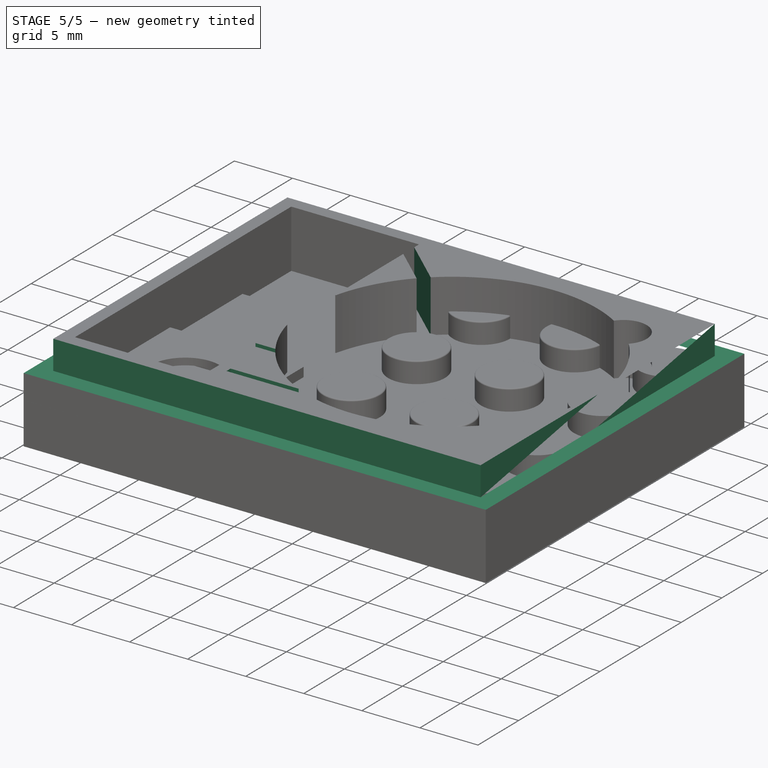
[diagram: stage 5 of 5 — iso view after this stage's code; geometry added in this stage tinted green]
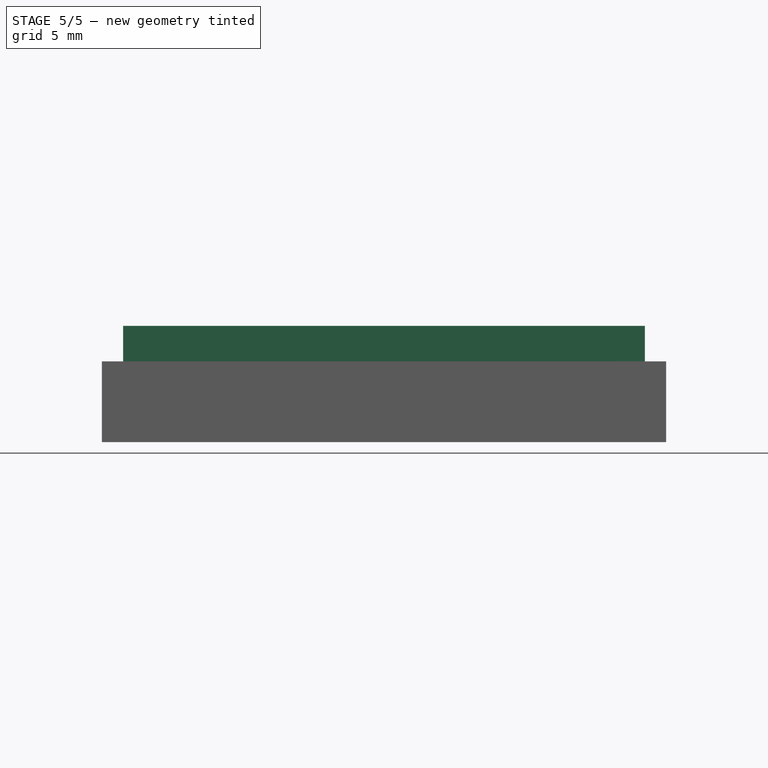
[diagram: stage 5 of 5 — front view after this stage's code; geometry added in this stage tinted green]
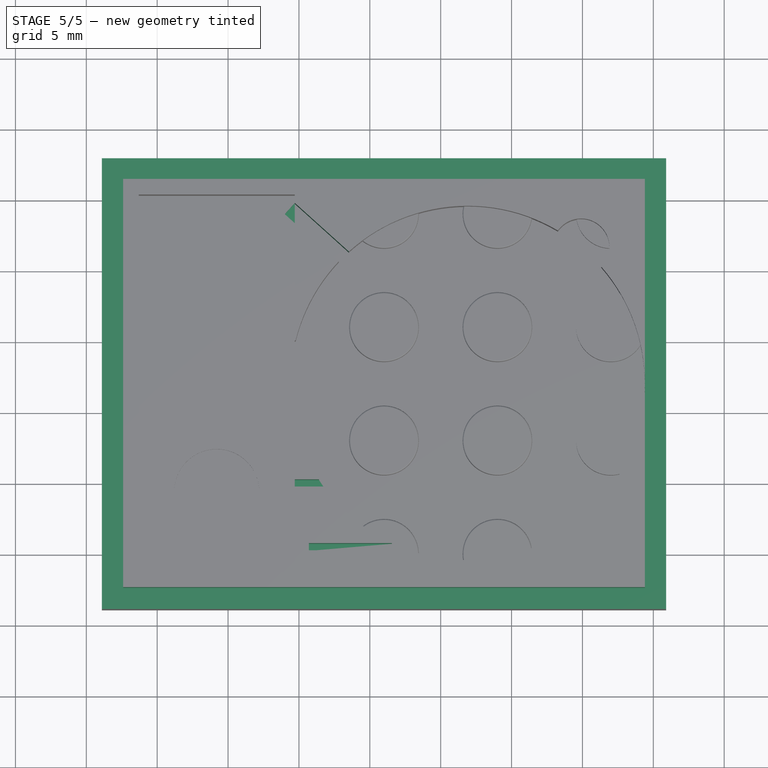
[diagram: stage 5 of 5 — top view after this stage's code; geometry added in this stage tinted green]
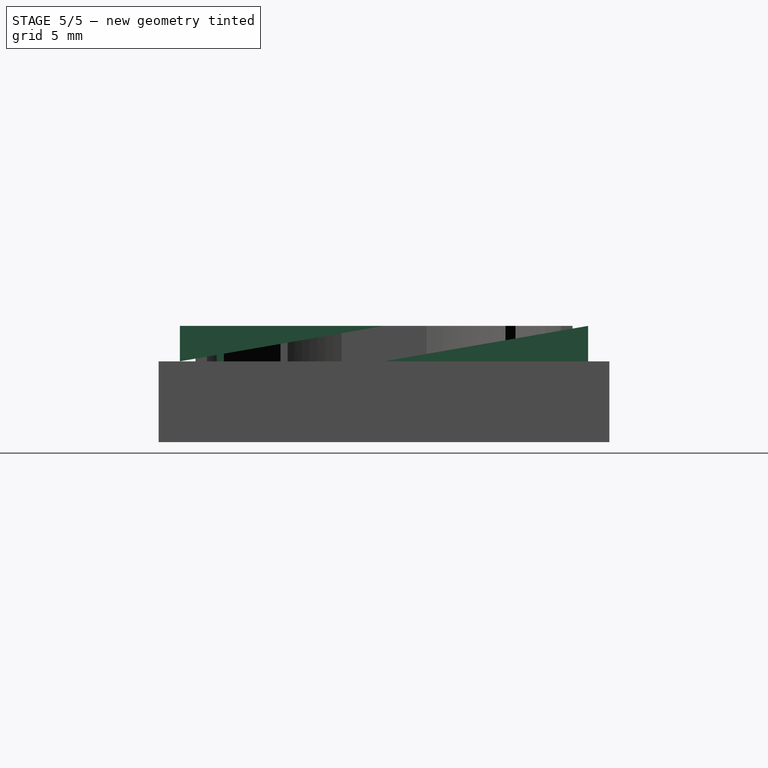
[diagram: stage 5 of 5 — right view after this stage's code; geometry added in this stage tinted green]
FEATURE [Sketcher::SketchObject] Sketch001  label="s_rand"
  ArcFitTolerance = 1e-06
  AttachmentSupport = -> [DatumPlane]
  ExternalGeometry = -> [body_pad_sketch,body_pocket_sketch]
  FullyConstrained = true
  MakeInternals = false
  MapMode = 5
  Placement = pos=(0,0,8.2) rot=(0,0,1;0rad)
  sketch-geometry (9):
    g0: LineSegment StartX=-2.4 StartY=26.4 StartZ=0 EndX=-2.4 EndY=-2.4 EndZ=0
    g1: LineSegment StartX=-2.4 StartY=-2.4 StartZ=0 EndX=34.4 EndY=-2.4 EndZ=0
    g2: LineSegment StartX=34.4 StartY=26.4 StartZ=0 EndX=-2.4 EndY=26.4 EndZ=0
    g3: LineSegment [constr] StartX=-3.9 StartY=12 StartZ=0 EndX=35.9 EndY=12 EndZ=0
    g4: LineSegment StartX=34.4 StartY=26.4 StartZ=0 EndX=34.4 EndY=-2.4 EndZ=0
    g5: LineSegment StartX=-3.9 StartY=27.9 StartZ=0 EndX=-3.9 EndY=-3.9 EndZ=0
    g6: LineSegment StartX=-3.9 StartY=-3.9 StartZ=0 EndX=35.9 EndY=-3.9 EndZ=0
    g7: LineSegment StartX=35.9 StartY=-3.9 StartZ=0 EndX=35.9 EndY=27.9 EndZ=0
    g8: LineSegment StartX=35.9 StartY=27.9 StartZ=0 EndX=-3.9 EndY=27.9 EndZ=0
  constraints (21):
    c: Coincident(g0,g1)
    c: Coincident(g2,g0)
    c: Vertical(g0)
    c: Horizontal(g2)
    c: Symmetric(g-3,g-3,g3)
    c: Symmetric(g-5,g-5,g3)
    c: Coincident(g4,g2)
    c: Coincident(g4,g1)
    c: Coincident(g5,g6)
    c: Coincident(g6,g7)
    c: Coincident(g7,g8)
    c: Coincident(g8,g5)
    c: Vertical(g5)
    c: Vertical(g7)
    c: Horizontal(g6)
    c: Horizontal(g8)
    c: Coincident(g5,g-4)
    c: Coincident(g6,g-6)
    c: Coincident(g0,g-10)
    c: Coincident(g1,g-10)
    c: Coincident(g2,g-9)
FEATURE [PartDesign::Pocket] Pocket  label="c_rand"
  BaseFeature = -> Pad
  Direction = (0,0,-1)
  Length = 2.5
  Length2 = 5
  Profile = -> Sketch001
  ReferenceAxis = -> Sketch001 [N_Axis]
  Refine = true
  Suppressed = false
  Type = 0
FEATURE [Sketcher::SketchObject] body_pocket_sketch001
  ArcFitTolerance = 1e-06
  AttachmentSupport = -> [body_pad_sketch001]
  ExternalGeometry = -> [body_pad_sketch001]
  FullyConstrained = true
  MakeInternals = false
  MapMode = 2
  sketch-geometry (12):
    g0: LineSegment StartX=-2.4 StartY=-2.4 StartZ=0 EndX=34.4 EndY=-2.4 EndZ=0
    g1: LineSegment StartX=34.4 StartY=-2.4 StartZ=0 EndX=34.4 EndY=26.4 EndZ=0
    g2: LineSegment StartX=34.4 StartY=26.4 StartZ=0 EndX=-2.4 EndY=26.4 EndZ=0
    g3: LineSegment StartX=-2.4 StartY=26.4 StartZ=0 EndX=-2.4 EndY=-2.4 EndZ=0
    g4: LineSegment StartX=-0.9 StartY=18 StartZ=0 EndX=-0.9 EndY=10 EndZ=0
    g5: LineSegment StartX=-0.9 StartY=10 StartZ=0 EndX=0.6 EndY=10 EndZ=0
    g6: LineSegment StartX=0.6 StartY=10 StartZ=0 EndX=0.6 EndY=18 EndZ=0
    g7: LineSegment StartX=0.6 StartY=18 StartZ=0 EndX=-0.9 EndY=18 EndZ=0
    g8: LineSegment StartX=5.4 StartY=19.4 StartZ=0 EndX=5.4 EndY=17.4 EndZ=0
    g9: LineSegment StartX=5.4 StartY=17.4 StartZ=0 EndX=9.4 EndY=17.4 EndZ=0
    g10: LineSegment StartX=9.4 StartY=17.4 StartZ=0 EndX=9.4 EndY=19.4 EndZ=0
    g11: LineSegment StartX=9.4 StartY=19.4 StartZ=0 EndX=5.4 EndY=19.4 EndZ=0
  constraints (36):
    c: Horizontal(g0)
    c: Vertical(g1)
    c: Coincident(g0,g1)
    c: Horizontal(g2)
    c: Coincident(g1,g2)
    c: Vertical(g3)
    c: Coincident(g2,g3)
    c: Coincident(g3,g0)
    c: DistanceX(g0,g0) = 36.8
    c: DistanceY(g1,g1) = 28.8
    c: DistanceX(g0,g-1) = 2.4
    c: DistanceY(g0,g-1) = 2.4
    c: Coincident(g4,g5)
    c: Coincident(g5,g6)
    c: Coincident(g6,g7)
    c: Coincident(g7,g4)
    c: Vertical(g4)
    c: Vertical(g6)
    c: Horizontal(g5)
    c: Horizontal(g7)
    c: DistanceY(g6,g6) = 8
    c: DistanceX(g7,g7) = 1.5
    c: DistanceX(g-3,g4) = 3
    c: Coincident(g8,g9)
    c: Coincident(g9,g10)
    c: Coincident(g10,g11)
    c: Coincident(g11,g8)
    c: Vertical(g8)
    c: Vertical(g10)
    c: Horizontal(g9)
    c: Horizontal(g11)
    c: DistanceX(g11,g11) = 4
    c: DistanceX(g2,g10) = 11.8
    c: DistanceY(g10,g10) = 2
    c: DistanceY(g8,g2) = 7
    c: DistanceY(g-1,g4) = 10
FEATURE [Sketcher::SketchObject] top_studs_outside_pad_sketch
  ArcFitTolerance = 1e-06
  AttachmentSupport = -> [top_datum_plane001]
  FullyConstrained = false
  MakeInternals = false
  MapMode = 5
  Placement = pos=(0,0,3.7) rot=(0,0,1;0rad)
  sketch-geometry (63):
    g0: LineSegment [constr] StartX=-1.76978 StartY=-1.76223 StartZ=0 EndX=1.76575 EndY=1.77331 EndZ=0
    g1: LineSegment [constr] StartX=-1.76978 StartY=6.23777 StartZ=0 EndX=1.76575 EndY=9.77331 EndZ=0
    g2: LineSegment [constr] StartX=-1.76978 StartY=-1.76223 StartZ=0 EndX=-1.76978 EndY=6.23777 EndZ=0
    g3: LineSegment [constr] StartX=-1.76978 StartY=14.2378 StartZ=0 EndX=1.76575 EndY=17.7733 EndZ=0
    g4: LineSegment [constr] StartX=-1.76978 StartY=6.23777 StartZ=0 EndX=-1.76978 EndY=14.2378 EndZ=0
    g5: LineSegment [constr] StartX=-1.76978 StartY=22.2378 StartZ=0 EndX=1.76575 EndY=25.7733 EndZ=0
    g6: LineSegment [constr] StartX=-1.76978 StartY=14.2378 StartZ=0 EndX=-1.76978 EndY=22.2378 EndZ=0
    g7: LineSegment [constr] StartX=6.23022 StartY=-1.76223 StartZ=0 EndX=9.76575 EndY=1.77331 EndZ=0
    g8: LineSegment [constr] StartX=-1.76978 StartY=-1.76223 StartZ=0 EndX=6.23022 EndY=-1.76223 EndZ=0
    g9: LineSegment [constr] StartX=6.23022 StartY=6.23777 StartZ=0 EndX=9.76575 EndY=9.77331 EndZ=0
    g10: LineSegment [constr] StartX=6.23022 StartY=-1.76223 StartZ=0 EndX=6.23022 EndY=6.23777 EndZ=0
    g11: LineSegment [constr] StartX=6.23022 StartY=14.2378 StartZ=0 EndX=9.69504 EndY=17.7026 EndZ=0
    g12: LineSegment [constr] StartX=6.23022 StartY=6.23777 StartZ=0 EndX=6.23022 EndY=14.2378 EndZ=0
    g13: LineSegment [constr] StartX=6.23022 StartY=22.2378 StartZ=0 EndX=9.76575 EndY=25.7733 EndZ=0
    g14: LineSegment [constr] StartX=6.23022 StartY=14.2378 StartZ=0 EndX=6.23022 EndY=22.2378 EndZ=0
    g15: LineSegment [constr] StartX=14.2302 StartY=-1.76223 StartZ=0 EndX=17.7658 EndY=1.77331 EndZ=0
    g16: ArcOfCircle CenterX=15.998 CenterY=0.00553921 CenterZ=0 NormalX=0 NormalY=0 NormalZ=1 AngleXU=0 Radius=2.5 StartAngle=3.92699 EndAngle=7.06858
    g17: ArcOfCircle CenterX=15.998 CenterY=0.00553921 CenterZ=0 NormalX=0 NormalY=0 NormalZ=1 AngleXU=0 Radius=2.5 StartAngle=0.785398 EndAngle=3.92699
    g18: LineSegment [constr] StartX=6.23022 StartY=-1.76223 StartZ=0 EndX=14.2302 EndY=-1.76223 EndZ=0
    g19: LineSegment [constr] StartX=14.2302 StartY=6.23777 StartZ=0 EndX=17.7658 EndY=9.77331 EndZ=0
    g20: ArcOfCircle CenterX=15.998 CenterY=8.00554 CenterZ=0 NormalX=0 NormalY=0 NormalZ=1 AngleXU=0 Radius=2.5 StartAngle=3.92699 EndAngle=7.06858
    g21: ArcOfCircle CenterX=15.998 CenterY=8.00554 CenterZ=0 NormalX=0 NormalY=0 NormalZ=1 AngleXU=0 Radius=2.5 StartAngle=0.785398 EndAngle=3.92699
    g22: LineSegment [constr] StartX=14.2302 StartY=-1.76223 StartZ=0 EndX=14.2302 EndY=6.23777 EndZ=0
    g23: LineSegment [constr] StartX=14.2302 StartY=14.2378 StartZ=0 EndX=17.7658 EndY=17.7733 EndZ=0
    g24: ArcOfCircle CenterX=15.998 CenterY=16.0055 CenterZ=0 NormalX=0 NormalY=0 NormalZ=1 AngleXU=0 Radius=2.5 StartAngle=3.92699 EndAngle=7.06858
    g25: ArcOfCircle CenterX=15.998 CenterY=16.0055 CenterZ=0 NormalX=0 NormalY=0 NormalZ=1 AngleXU=0 Radius=2.5 StartAngle=0.785398 EndAngle=3.92699
    g26: LineSegment [constr] StartX=14.2302 StartY=6.23777 StartZ=0 EndX=14.2302 EndY=14.2378 EndZ=0
    g27: LineSegment [constr] StartX=14.2302 StartY=22.2378 StartZ=0 EndX=17.7658 EndY=25.7733 EndZ=0
    g28: ArcOfCircle CenterX=15.998 CenterY=24.0055 CenterZ=0 NormalX=0 NormalY=0 NormalZ=1 AngleXU=0 Radius=2.5 StartAngle=3.92699 EndAngle=7.06858
    g29: ArcOfCircle CenterX=15.998 CenterY=24.0055 CenterZ=0 NormalX=0 NormalY=0 NormalZ=1 AngleXU=0 Radius=2.5 StartAngle=0.785398 EndAngle=3.92699
    g30: LineSegment [constr] StartX=14.2302 StartY=14.2378 StartZ=0 EndX=14.2302 EndY=22.2378 EndZ=0
    g31: LineSegment [constr] StartX=22.2302 StartY=-1.76223 StartZ=0 EndX=25.7658 EndY=1.77331 EndZ=0
    g32: ArcOfCircle CenterX=23.998 CenterY=0.00553921 CenterZ=0 NormalX=0 NormalY=0 NormalZ=1 AngleXU=0 Radius=2.5 StartAngle=3.92699 EndAngle=7.06858
    g33: ArcOfCircle CenterX=23.998 CenterY=0.00553921 CenterZ=0 NormalX=0 NormalY=0 NormalZ=1 AngleXU=0 Radius=2.5 StartAngle=0.785398 EndAngle=3.92699
    g34: LineSegment [constr] StartX=14.2302 StartY=-1.76223 StartZ=0 EndX=22.2302 EndY=-1.76223 EndZ=0
    g35: LineSegment [constr] StartX=22.2302 StartY=6.23777 StartZ=0 EndX=25.7658 EndY=9.77331 EndZ=0
    g36: ArcOfCircle CenterX=23.998 CenterY=8.00554 CenterZ=0 NormalX=0 NormalY=0 NormalZ=1 AngleXU=0 Radius=2.5 StartAngle=3.92699 EndAngle=7.06858
    g37: ArcOfCircle CenterX=23.998 CenterY=8.00554 CenterZ=0 NormalX=0 NormalY=0 NormalZ=1 AngleXU=0 Radius=2.5 StartAngle=0.785398 EndAngle=3.92699
    g38: LineSegment [constr] StartX=22.2302 StartY=-1.76223 StartZ=0 EndX=22.2302 EndY=6.23777 EndZ=0
    g39: LineSegment [constr] StartX=22.2302 StartY=14.2378 StartZ=0 EndX=25.7658 EndY=17.7733 EndZ=0
    g40: ArcOfCircle CenterX=23.998 CenterY=16.0055 CenterZ=0 NormalX=0 NormalY=0 NormalZ=1 AngleXU=0 Radius=2.5 StartAngle=3.92699 EndAngle=7.06858
    g41: ArcOfCircle CenterX=23.998 CenterY=16.0055 CenterZ=0 NormalX=0 NormalY=0 NormalZ=1 AngleXU=0 Radius=2.5 StartAngle=0.785398 EndAngle=3.92699
    g42: LineSegment [constr] StartX=22.2302 StartY=6.23777 StartZ=0 EndX=22.2302 EndY=14.2378 EndZ=0
    g43: LineSegment [constr] StartX=22.2302 StartY=22.2378 StartZ=0 EndX=25.7658 EndY=25.7733 EndZ=0
    g44: ArcOfCircle CenterX=23.998 CenterY=24.0055 CenterZ=0 NormalX=0 NormalY=0 NormalZ=1 AngleXU=0 Radius=2.5 StartAngle=3.92699 EndAngle=7.06858
    g45: ArcOfCircle CenterX=23.998 CenterY=24.0055 CenterZ=0 NormalX=0 NormalY=0 NormalZ=1 AngleXU=0 Radius=2.5 StartAngle=0.785398 EndAngle=3.92699
    g46: LineSegment [constr] StartX=22.2302 StartY=14.2378 StartZ=0 EndX=22.2302 EndY=22.2378 EndZ=0
    g47: LineSegment [constr] StartX=30.2302 StartY=-1.76223 StartZ=0 EndX=33.7658 EndY=1.77331 EndZ=0
    g48: ArcOfCircle CenterX=31.998 CenterY=0.00553921 CenterZ=0 NormalX=0 NormalY=0 NormalZ=1 AngleXU=0 Radius=2.5 StartAngle=3.92699 EndAngle=7.06858
    g49: ArcOfCircle CenterX=31.998 CenterY=0.00553921 CenterZ=0 NormalX=0 NormalY=0 NormalZ=1 AngleXU=0 Radius=2.5 StartAngle=0.785398 EndAngle=3.92699
    g50: LineSegment [constr] StartX=22.2302 StartY=-1.76223 StartZ=0 EndX=30.2302 EndY=-1.76223 EndZ=0
    g51: LineSegment [constr] StartX=30.2302 StartY=6.23777 StartZ=0 EndX=33.7658 EndY=9.77331 EndZ=0
    g52: ArcOfCircle CenterX=31.998 CenterY=8.00554 CenterZ=0 NormalX=0 NormalY=0 NormalZ=1 AngleXU=0 Radius=2.5 StartAngle=3.92699 EndAngle=7.06858
    g53: ArcOfCircle CenterX=31.998 CenterY=8.00554 CenterZ=0 NormalX=0 NormalY=0 NormalZ=1 AngleXU=0 Radius=2.5 StartAngle=0.785398 EndAngle=3.92699
    g54: LineSegment [constr] StartX=30.2302 StartY=-1.76223 StartZ=0 EndX=30.2302 EndY=6.23777 EndZ=0
    g55: LineSegment [constr] StartX=30.2302 StartY=14.2378 StartZ=0 EndX=33.7658 EndY=17.7733 EndZ=0
    g56: ArcOfCircle CenterX=31.998 CenterY=16.0055 CenterZ=0 NormalX=0 NormalY=0 NormalZ=1 AngleXU=0 Radius=2.5 StartAngle=3.92699 EndAngle=7.06858
    g57: ArcOfCircle CenterX=31.998 CenterY=16.0055 CenterZ=0 NormalX=0 NormalY=0 NormalZ=1 AngleXU=0 Radius=2.5 StartAngle=0.785398 EndAngle=3.92699
    g58: LineSegment [constr] StartX=30.2302 StartY=6.23777 StartZ=0 EndX=30.2302 EndY=14.2378 EndZ=0
    g59: LineSegment [constr] StartX=30.2302 StartY=22.2378 StartZ=0 EndX=33.7658 EndY=25.7733 EndZ=0
    g60: ArcOfCircle CenterX=31.998 CenterY=24.0055 CenterZ=0 NormalX=0 NormalY=0 NormalZ=1 AngleXU=0 Radius=2.5 StartAngle=3.92699 EndAngle=7.06858
    g61: ArcOfCircle CenterX=31.998 CenterY=24.0055 CenterZ=0 NormalX=0 NormalY=0 NormalZ=1 AngleXU=0 Radius=2.5 StartAngle=0.785398 EndAngle=3.92699
    g62: LineSegment [constr] StartX=30.2302 StartY=14.2378 StartZ=0 EndX=30.2302 EndY=22.2378 EndZ=0
  constraints (188):
    c: Angle(g0) = 0.785398
    c: Distance(g0,g0) = 5
    c: Angle(g1) = 0.785398
    c: Distance(g1,g1) = 5
    c: Coincident(g0,g2)
    c: Coincident(g1,g2)
    c: Distance(g2) = 8
    c: Angle(g2) = 1.5708
    c: Angle(g3) = 0.785398
    c: Distance(g3,g3) = 5
    c: Coincident(g1,g4)
    c: Coincident(g3,g4)
    c: Equal(g2,g4)
    c: Parallel(g4,g2)
    c: Angle(g5) = 0.785398
    c: Distance(g5,g5) = 5
    c: Coincident(g3,g6)
    c: Coincident(g5,g6)
    c: Equal(g2,g6)
    c: Parallel(g6,g2)
    c: Angle(g7) = 0.785398
    c: Distance(g7,g7) = 5
    c: Coincident(g0,g8)
    c: Coincident(g7,g8)
    c: Equal(g8,g2)
    c: Perpendicular(g8,g2)
    c: Angle(g9) = 0.785398
    c: Distance(g9,g9) = 5
    c: Coincident(g7,g10)
    c: Coincident(g9,g10)
    c: Equal(g2,g10)
    c: Parallel(g10,g2)
    c: Angle(g11) = 0.785398
    c: Distance(g11,g11) = 4.9
    c: Coincident(g9,g12)
    c: Coincident(g11,g12)
    c: Equal(g2,g12)
    c: Parallel(g12,g2)
    c: Angle(g13) = 0.785398
    c: Distance(g13,g13) = 5
    c: Coincident(g11,g14)
    c: Coincident(g13,g14)
    c: Equal(g2,g14)
    c: Parallel(g14,g2)
    c: Angle(g15) = 0.785398
    c: Distance(g15,g15) = 5
    c: PointOnObject(g16,g15)
    c: PointOnObject(g17,g15)
    c: Coincident(g15,g16)
    c: Coincident(g15,g17)
    c: Coincident(g15,g16)
    c: Coincident(g15,g17)
    c: Coincident(g7,g18)
    c: Coincident(g15,g18)
    c: Equal(g8,g18)
    c: Perpendicular(g18,g2)
    c: Angle(g19) = 0.785398
    c: Distance(g19,g19) = 5
    c: PointOnObject(g20,g19)
    c: PointOnObject(g21,g19)
    c: Coincident(g19,g20)
    c: Coincident(g19,g21)
    c: Coincident(g19,g20)
    c: Coincident(g19,g21)
    c: Coincident(g15,g22)
    c: Coincident(g19,g22)
    c: Equal(g2,g22)
    c: Parallel(g22,g2)
    c: Angle(g23) = 0.785398
    c: Distance(g23,g23) = 5
    c: PointOnObject(g24,g23)
    c: PointOnObject(g25,g23)
    c: Coincident(g23,g24)
    c: Coincident(g23,g25)
    c: Coincident(g23,g24)
    c: Coincident(g23,g25)
    c: Coincident(g19,g26)
    c: Coincident(g23,g26)
    c: Equal(g2,g26)
    c: Parallel(g26,g2)
    c: Angle(g27) = 0.785398
    c: Distance(g27,g27) = 5
    c: PointOnObject(g28,g27)
    c: PointOnObject(g29,g27)
    c: Coincident(g27,g28)
    c: Coincident(g27,g29)
    c: Coincident(g27,g28)
    c: Coincident(g27,g29)
    c: Coincident(g23,g30)
    c: Coincident(g27,g30)
    c: Equal(g2,g30)
    c: Parallel(g30,g2)
    c: Angle(g31) = 0.785398
    c: Distance(g31,g31) = 5
    c: PointOnObject(g32,g31)
    c: PointOnObject(g33,g31)
    c: Coincident(g31,g32)
    c: Coincident(g31,g33)
    c: Coincident(g31,g32)
    c: Coincident(g31,g33)
    c: Coincident(g15,g34)
    c: Coincident(g31,g34)
    c: Equal(g8,g34)
    c: Perpendicular(g34,g2)
    c: Angle(g35) = 0.785398
    c: Distance(g35,g35) = 5
    c: PointOnObject(g36,g35)
    c: PointOnObject(g37,g35)
    c: Coincident(g35,g36)
    c: Coincident(g35,g37)
    c: Coincident(g35,g36)
    c: Coincident(g35,g37)
    c: Coincident(g31,g38)
    c: Coincident(g35,g38)
    c: Equal(g2,g38)
    c: Parallel(g38,g2)
    c: Angle(g39) = 0.785398
    c: Distance(g39,g39) = 5
    c: PointOnObject(g40,g39)
    c: PointOnObject(g41,g39)
    c: Coincident(g39,g40)
    c: Coincident(g39,g41)
    c: Coincident(g39,g40)
    c: Coincident(g39,g41)
    c: Coincident(g35,g42)
    c: Coincident(g39,g42)
    c: Equal(g2,g42)
    c: Parallel(g42,g2)
    c: Angle(g43) = 0.785398
    c: Distance(g43,g43) = 5
    c: PointOnObject(g44,g43)
    c: PointOnObject(g45,g43)
    c: Coincident(g43,g44)
    c: Coincident(g43,g45)
    c: Coincident(g43,g44)
    c: Coincident(g43,g45)
    c: Coincident(g39,g46)
    c: Coincident(g43,g46)
    c: Equal(g2,g46)
    c: Parallel(g46,g2)
    c: Angle(g47) = 0.785398
    c: Distance(g47,g47) = 5
    c: PointOnObject(g48,g47)
    c: PointOnObject(g49,g47)
    c: Coincident(g47,g48)
    c: Coincident(g47,g49)
    c: Coincident(g47,g48)
    c: Coincident(g47,g49)
    c: Coincident(g31,g50)
    c: Coincident(g47,g50)
    c: Equal(g8,g50)
    c: Perpendicular(g50,g2)
    c: Angle(g51) = 0.785398
    c: Distance(g51,g51) = 5
    c: PointOnObject(g52,g51)
    c: PointOnObject(g53,g51)
    c: Coincident(g51,g52)
    c: Coincident(g51,g53)
    c: Coincident(g51,g52)
    c: Coincident(g51,g53)
    c: Coincident(g47,g54)
    c: Coincident(g51,g54)
    c: Equal(g2,g54)
    c: Parallel(g54,g2)
    c: Angle(g55) = 0.785398
    c: Distance(g55,g55) = 5
    c: PointOnObject(g56,g55)
    c: PointOnObject(g57,g55)
    c: Coincident(g55,g56)
    c: Coincident(g55,g57)
    c: Coincident(g55,g56)
    c: Coincident(g55,g57)
    c: Coincident(g51,g58)
    c: Coincident(g55,g58)
    c: Equal(g2,g58)
    c: Parallel(g58,g2)
    c: Angle(g59) = 0.785398
    c: Distance(g59,g59) = 5
    c: PointOnObject(g60,g59)
    c: PointOnObject(g61,g59)
    c: Coincident(g59,g60)
    c: Coincident(g59,g61)
    c: Coincident(g59,g60)
    c: Coincident(g59,g61)
    c: Coincident(g55,g62)
    c: Coincident(g59,g62)
    c: Equal(g2,g62)
    c: Parallel(g62,g2)
FEATURE [Sketcher::SketchObject] Sketch002  label="s_oeffnungen"
  ArcFitTolerance = 1e-06
  AttachmentSupport = -> [XY_Plane]
  ExternalGeometry = -> [body_pad_sketch001,body_pocket_sketch001]
  FullyConstrained = true
  MakeInternals = false
  MapMode = 5
  sketch-geometry (6):
    g0: LineSegment StartX=-1.3 StartY=25.3 StartZ=0 EndX=-1.3 EndY=19.3 EndZ=0
    g1: LineSegment StartX=-1.3 StartY=19.3 StartZ=0 EndX=9.7 EndY=19.3 EndZ=0
    g2: LineSegment StartX=9.7 StartY=19.3 StartZ=0 EndX=9.7 EndY=25.3 EndZ=0
    g3: LineSegment StartX=9.7 StartY=25.3 StartZ=0 EndX=-1.3 EndY=25.3 EndZ=0
    g4: LineSegment [constr] StartX=4.2 StartY=27.9 StartZ=0 EndX=4.2 EndY=0 EndZ=0
    g5: Circle CenterX=4.2 CenterY=4.4 CenterZ=0 NormalX=0 NormalY=0 NormalZ=1 AngleXU=0 Radius=3
  constraints (18):
    c: Coincident(g0,g1)
    c: Coincident(g1,g2)
    c: Coincident(g2,g3)
    c: Coincident(g3,g0)
    c: Vertical(g0)
    c: Vertical(g2)
    c: Horizontal(g1)
    c: Horizontal(g3)
    c: DistanceY(g2,g2) = 6
    c: PointOnObject(g4,g-1)
    c: PointOnObject(g5,g4)
    c: Diameter(g5) = 6
    c: DistanceY(g4,g5) = 4.4
    c: DistanceX(g-4,g0) = 2.6
    c: DistanceX(g3,g3) = 11
    c: DistanceY(g0,g-4) = 2.6
    c: PointOnObject(g4,g-3)
    c: Symmetric(g0,g1,g4)
FEATURE [Sketcher::SketchObject] Sketch003  label="s_gndbat"
  ArcFitTolerance = 1e-06
  AttachmentSupport = -> [top_datum_plane]
  ExternalGeometry = -> [Sketch]
  FullyConstrained = true
  MakeInternals = false
  MapMode = 5
  Placement = pos=(0,0,3.2) rot=(0,0,1;0rad)
  sketch-geometry (4):
    g0: LineSegment StartX=9.66913 StartY=24.7431 StartZ=0 EndX=20.8163 EndY=14.7062 EndZ=0
    g1: LineSegment StartX=20.8163 StartY=14.7062 StartZ=0 EndX=20.1472 EndY=13.963 EndZ=0
    g2: LineSegment StartX=20.1472 StartY=13.963 StartZ=0 EndX=9 EndY=24 EndZ=0
    g3: LineSegment StartX=9 StartY=24 StartZ=0 EndX=9.66913 EndY=24.7431 EndZ=0
  constraints (12):
    c: Coincident(g0,g1)
    c: Coincident(g1,g2)
    c: Coincident(g2,g3)
    c: Coincident(g3,g0)
    c: Parallel(g2,g0)
    c: Parallel(g3,g1)
    c: Distance(g1) = 1
    c: Angle(g1,g2) = 1.5708
    c: Distance(g0) = 15
    c: DistanceX(g-1,g2) = 9
    c: DistanceY(g-1,g2) = 24
    c: Angle(g2,g-3) = 0.733038
FEATURE [Sketcher::SketchObject] Sketch004  label="s_plusbat"
  ArcFitTolerance = 1e-06
  AttachmentSupport = -> [top_datum_plane]
  ExternalGeometry = -> [Sketch]
  FullyConstrained = true
  MakeInternals = false
  MapMode = 5
  Placement = pos=(0,0,3.2) rot=(0,0,1;0rad)
  sketch-geometry (8):
    g0: LineSegment StartX=10.7 StartY=0.7 StartZ=0 EndX=10.7 EndY=0.2 EndZ=0
    g1: LineSegment StartX=10.7 StartY=0.2 StartZ=0 EndX=18.7 EndY=0.2 EndZ=0
    g2: LineSegment StartX=18.7 StartY=0.2 StartZ=0 EndX=18.7 EndY=0.7 EndZ=0
    g3: LineSegment StartX=18.7 StartY=0.7 StartZ=0 EndX=10.7 EndY=0.7 EndZ=0
    g4: LineSegment StartX=8.7 StartY=5.2 StartZ=0 EndX=8.7 EndY=4.7 EndZ=0
    g5: LineSegment StartX=8.7 StartY=4.7 StartZ=0 EndX=12.7 EndY=4.7 EndZ=0
    g6: LineSegment StartX=12.7 StartY=4.7 StartZ=0 EndX=12.7 EndY=5.2 EndZ=0
    g7: LineSegment StartX=12.7 StartY=5.2 StartZ=0 EndX=8.7 EndY=5.2 EndZ=0
  constraints (24):
    c: Coincident(g0,g1)
    c: Coincident(g1,g2)
    c: Coincident(g2,g3)
    c: Coincident(g3,g0)
    c: Vertical(g0)
    c: Vertical(g2)
    c: Horizontal(g1)
    c: Horizontal(g3)
    c: DistanceY(g0,g0) = 0.5
    c: DistanceX(g-3,g0) = 1
    c: Coincident(g4,g5)
    c: Coincident(g5,g6)
    c: Coincident(g6,g7)
    c: Coincident(g7,g4)
    c: Vertical(g4)
    c: Vertical(g6)
    c: Horizontal(g5)
    c: Horizontal(g7)
    c: DistanceY(g4,g4) = 0.5
    c: DistanceX(g5,g5) = 4
    c: DistanceX(g4,g-3) = 1
    c: DistanceY(g-3,g4) = 6
    c: DistanceY(g-3,g0) = 1.5
    c: DistanceX(g3,g3) = 8
FEATURE [PartDesign::Pocket] Pocket002  label="c_gndbat"
  BaseFeature = -> Pocket
  Direction = (0,0,-1)
  Length = 5
  Length2 = 0.8
  Profile = -> Sketch003
  ReferenceAxis = -> Sketch003 [N_Axis]
  Refine = true
  Reversed = true
  Suppressed = false
  Type = 4
FEATURE [PartDesign::Pocket] Pocket003  label="c_plusbat"
  BaseFeature = -> Pocket002
  Direction = (0,0,-1)
  Length = 5
  Length2 = -2.4
  Profile = -> Sketch004
  ReferenceAxis = -> Sketch004 [N_Axis]
  Refine = true
  Reversed = true
  Suppressed = false
  Type = 4
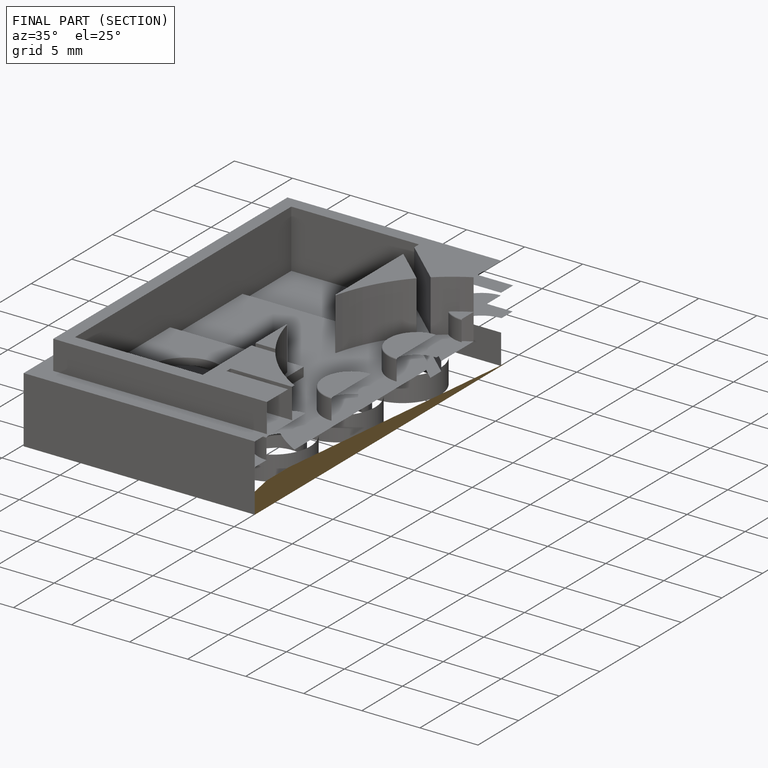
[diagram: finished part — half-section view (interior)]
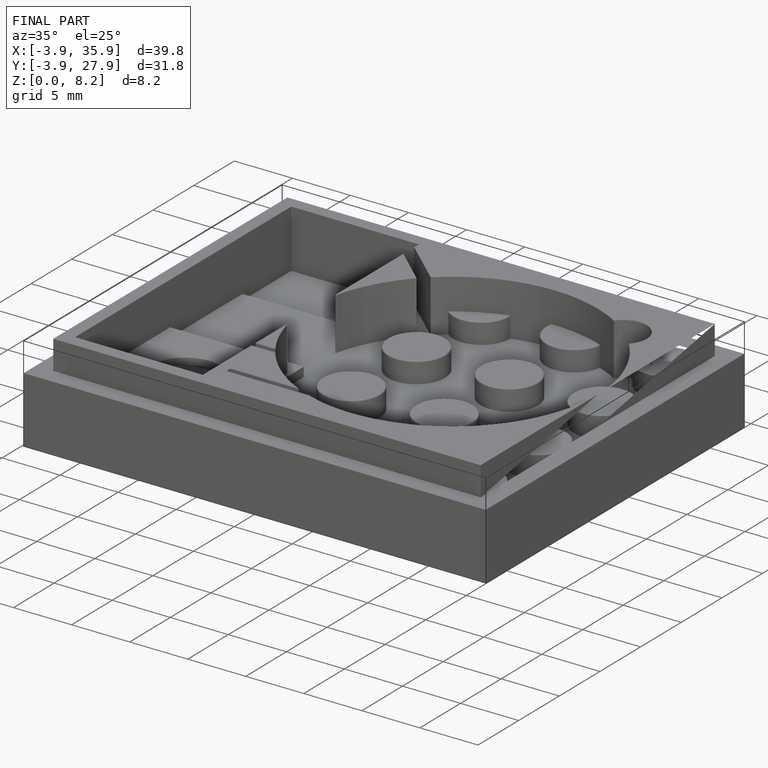
[diagram: finished part — iso view with bounding-box wireframe]
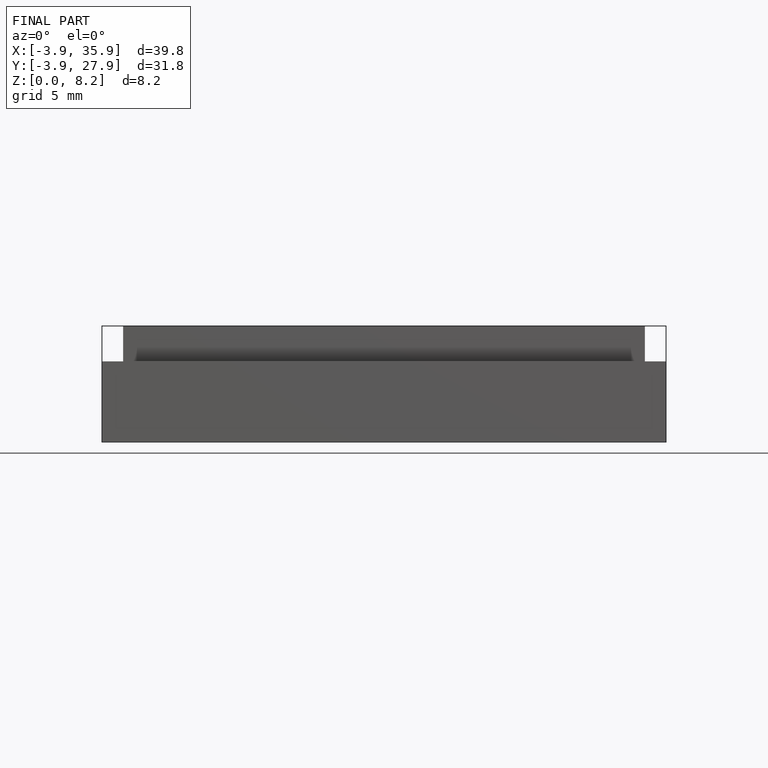
[diagram: finished part — front view with bounding-box wireframe]
